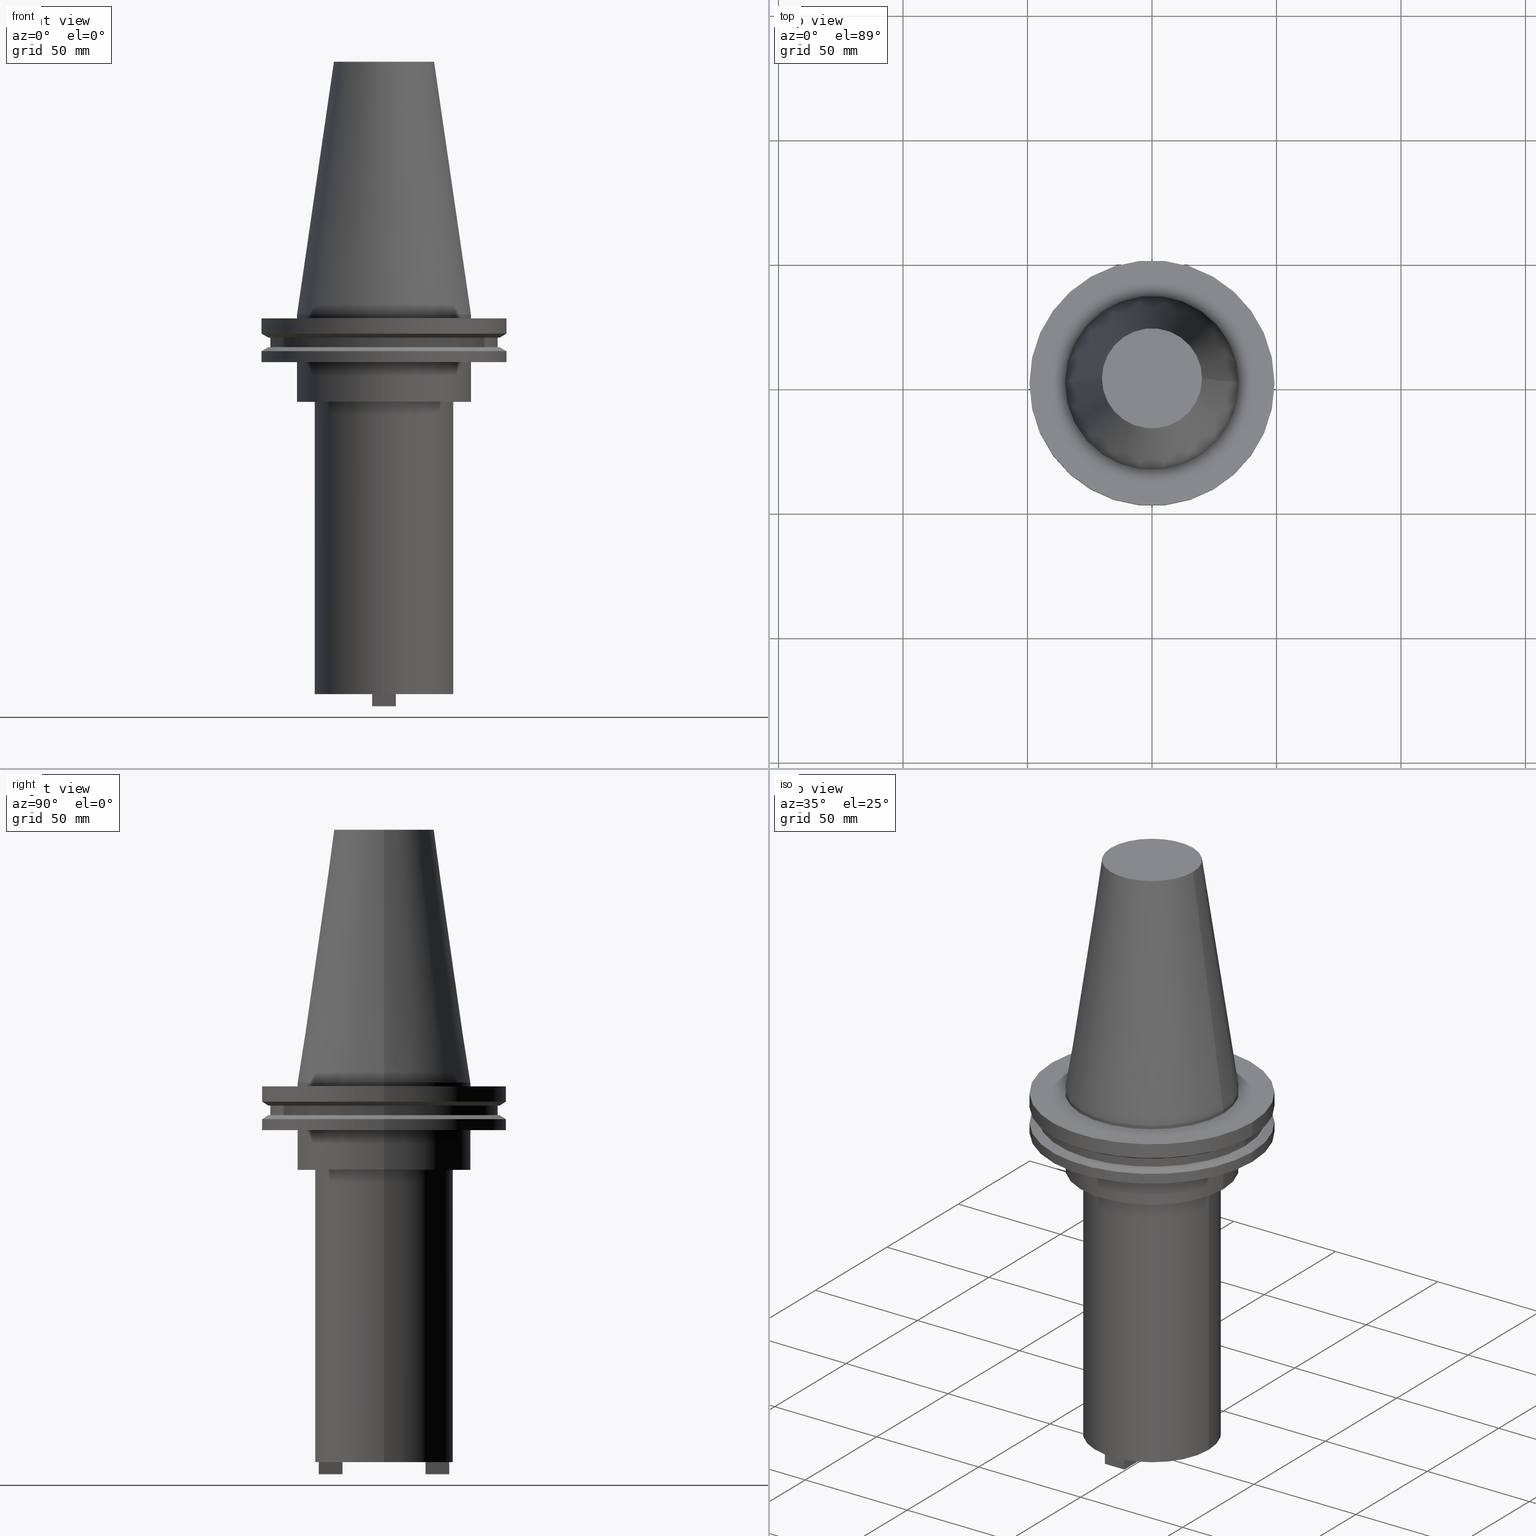
[diagram: canonical four-view strip — front | top / right | iso, engineering-drawing reading convention]
A machine part, canonical four-view strip (front | top / right | iso — engineering-drawing reading convention). The complete STEP part file that produces these views, byte-faithful:
ISO-10303-21;
HEADER;
FILE_DESCRIPTION (( 'STEP AP203' ),
    '1' );
FILE_NAME ('BCV50-SMC1_000-6.stp',
    '2022-03-03T19:54:23',
    ( '' ),
    ( '' ),
    'SwSTEP 2.0',
    'SolidWorks 2021',
    '' );
FILE_SCHEMA (( 'CONFIG_CONTROL_DESIGN' ));
ENDSEC;

DATA;
#1 = DIRECTION ( 'NONE',  ( -0.000000000000000000, -0.000000000000000000, 1.000000000000000000 ) ) ;
#2 = DIRECTION ( 'NONE',  ( 6.374311985216615162E-16, -1.000000000000000000, 0.000000000000000000 ) ) ;
#3 = EDGE_CURVE ( 'NONE', #386, #532, #207, .T. ) ;
#4 = ORIENTED_EDGE ( 'NONE', *, *, #655, .F. ) ;
#5 = CARTESIAN_POINT ( 'NONE',  ( -49.21499999999999631, 6.027099222003697826E-15, -1.499999999999987566 ) ) ;
#6 = VECTOR ( 'NONE', #91, 1000.000000000000114 ) ;
#7 = ORIENTED_EDGE ( 'NONE', *, *, #731, .T. ) ;
#8 = FACE_OUTER_BOUND ( 'NONE', #297, .T. ) ;
#9 = EDGE_CURVE ( 'NONE', #337, #527, #148, .T. ) ;
#10 = EDGE_LOOP ( 'NONE', ( #437, #776, #512, #904 ) ) ;
#11 = CARTESIAN_POINT ( 'NONE',  ( -27.80030000000000001, 3.404554841033616429E-15, -152.4000000000000057 ) ) ;
#12 = CARTESIAN_POINT ( 'NONE',  ( 46.43919780457007818, 5.857130358318725715E-15, -13.05499999999999794 ) ) ;
#13 = DIRECTION ( 'NONE',  ( -0.000000000000000000, -0.000000000000000000, 1.000000000000000000 ) ) ;
#14 = AXIS2_PLACEMENT_3D ( 'NONE', #205, #956, #1047 ) ;
#15 = FACE_OUTER_BOUND ( 'NONE', #744, .T. ) ;
#16 = ORIENTED_EDGE ( 'NONE', *, *, #501, .F. ) ;
#17 = DIRECTION ( 'NONE',  ( 1.000000000000000000, 0.000000000000000000, 0.000000000000000000 ) ) ;
#18 = DIRECTION ( 'NONE',  ( 0.000000000000000000, 0.000000000000000000, -1.000000000000000000 ) ) ;
#19 = ORIENTED_EDGE ( 'NONE', *, *, #501, .T. ) ;
#20 = DIRECTION ( 'NONE',  ( -0.000000000000000000, -0.000000000000000000, 1.000000000000000000 ) ) ;
#21 = CARTESIAN_POINT ( 'NONE',  ( 0.000000000000000000, 0.000000000000000000, 0.000000000000000000 ) ) ;
#22 = CARTESIAN_POINT ( 'NONE',  ( 4.762499999999986855, 16.68250000000001876, -152.4000000000000057 ) ) ;
#23 = CIRCLE ( 'NONE', #451, 34.92499999999999716 ) ;
#24 = ORIENTED_EDGE ( 'NONE', *, *, #28, .T. ) ;
#25 = DIRECTION ( 'NONE',  ( -0.000000000000000000, -0.000000000000000000, 1.000000000000000000 ) ) ;
#26 = VERTEX_POINT ( 'NONE', #225 ) ;
#27 = AXIS2_PLACEMENT_3D ( 'NONE', #823, #389, #540 ) ;
#28 = EDGE_CURVE ( 'NONE', #1056, #191, #216, .T. ) ;
#29 = DIRECTION ( 'NONE',  ( 1.000000000000000000, 0.000000000000000000, 0.000000000000000000 ) ) ;
#30 = CARTESIAN_POINT ( 'NONE',  ( 4.762499999999988631, -26.20750000000001023, -152.4000000000000057 ) ) ;
#31 = MANIFOLD_SOLID_BREP ( 'Boss-Extrude1', #888 ) ;
#32 = PRODUCT_RELATED_PRODUCT_CATEGORY ( 'detail', '', ( #167 ) ) ;
#33 = ORIENTED_EDGE ( 'NONE', *, *, #370, .F. ) ;
#34 = FACE_OUTER_BOUND ( 'NONE', #126, .T. ) ;
#35 = PLANE ( 'NONE',  #379 ) ;
#36 = AXIS2_PLACEMENT_3D ( 'NONE', #942, #157, #486 ) ;
#37 = EDGE_LOOP ( 'NONE', ( #391, #730, #1064, #43 ) ) ;
#38 = FACE_OUTER_BOUND ( 'NONE', #366, .T. ) ;
#39 = FACE_OUTER_BOUND ( 'NONE', #650, .T. ) ;
#40 = DIRECTION ( 'NONE',  ( -0.000000000000000000, -0.000000000000000000, 1.000000000000000000 ) ) ;
#41 = EDGE_CURVE ( 'NONE', #782, #340, #972, .T. ) ;
#42 = EDGE_CURVE ( 'NONE', #536, #571, #1085, .T. ) ;
#43 = ORIENTED_EDGE ( 'NONE', *, *, #852, .F. ) ;
#44 = ORIENTED_EDGE ( 'NONE', *, *, #312, .F. ) ;
#45 = DIRECTION ( 'NONE',  ( -0.000000000000000000, -0.000000000000000000, 1.000000000000000000 ) ) ;
#46 = CIRCLE ( 'NONE', #175, 20.10819343178871321 ) ;
#47 = DIRECTION ( 'NONE',  ( -0.000000000000000000, -0.000000000000000000, 1.000000000000000000 ) ) ;
#48 = AXIS2_PLACEMENT_3D ( 'NONE', #256, #517, #114 ) ;
#49 = ORIENTED_EDGE ( 'NONE', *, *, #974, .F. ) ;
#50 = AXIS2_PLACEMENT_3D ( 'NONE', #56, #368, #720 ) ;
#51 = FACE_BOUND ( 'NONE', #308, .T. ) ;
#52 = ORIENTED_EDGE ( 'NONE', *, *, #9, .T. ) ;
#53 = FACE_OUTER_BOUND ( 'NONE', #315, .T. ) ;
#54 = ORIENTED_EDGE ( 'NONE', *, *, #936, .F. ) ;
#55 = DIRECTION ( 'NONE',  ( -0.000000000000000000, -0.000000000000000000, 1.000000000000000000 ) ) ;
#56 = CARTESIAN_POINT ( 'NONE',  ( 0.000000000000000000, 27.80030000000000001, -152.4000000000000057 ) ) ;
#57 = VECTOR ( 'NONE', #935, 1000.000000000000000 ) ;
#58 = ADVANCED_FACE ( 'NONE', ( #728 ), #455, .F. ) ;
#59 = CALENDAR_DATE ( 2022, 3, 3 ) ;
#60 = ORIENTED_EDGE ( 'NONE', *, *, #971, .F. ) ;
#61 = FACE_OUTER_BOUND ( 'NONE', #578, .T. ) ;
#62 = ORIENTED_EDGE ( 'NONE', *, *, #749, .T. ) ;
#63 = AXIS2_PLACEMENT_3D ( 'NONE', #920, #387, #323 ) ;
#64 = ORIENTED_EDGE ( 'NONE', *, *, #42, .F. ) ;
#65 = AXIS2_PLACEMENT_3D ( 'NONE', #274, #622, #955 ) ;
#66 = VERTEX_POINT ( 'NONE', #1059 ) ;
#67 = LINE ( 'NONE', #826, #196 ) ;
#68 = AXIS2_PLACEMENT_3D ( 'NONE', #867, #441, #423 ) ;
#69 = ORIENTED_EDGE ( 'NONE', *, *, #831, .F. ) ;
#70 = VECTOR ( 'NONE', #472, 1000.000000000000000 ) ;
#71 = COORDINATED_UNIVERSAL_TIME_OFFSET ( 6, 0, .BEHIND. ) ;
#72 = VERTEX_POINT ( 'NONE', #800 ) ;
#73 = CARTESIAN_POINT ( 'NONE',  ( -4.762500000000017941, 26.20750000000002089, -157.2999999999999829 ) ) ;
#74 = ORIENTED_EDGE ( 'NONE', *, *, #609, .F. ) ;
#75 = DATE_TIME_ROLE ( 'creation_date' ) ;
#76 = DIRECTION ( 'NONE',  ( -1.000000000000000000, 3.642463991552348493E-16, 0.000000000000000000 ) ) ;
#77 = PRODUCT_DEFINITION_SHAPE ( 'NONE', 'NONE',  #596 ) ;
#78 = FACE_OUTER_BOUND ( 'NONE', #269, .T. ) ;
#79 = CIRCLE ( 'NONE', #372, 5.755000000000006111 ) ;
#80 = ADVANCED_FACE ( 'NONE', ( #51, #360, #1050, #550 ), #885, .F. ) ;
#81 = EDGE_CURVE ( 'NONE', #558, #425, #1080, .T. ) ;
#82 = CARTESIAN_POINT ( 'NONE',  ( 0.000000000000000000, 0.000000000000000000, -152.4000000000000057 ) ) ;
#83 = DIRECTION ( 'NONE',  ( 0.000000000000000000, 0.000000000000000000, 1.000000000000000000 ) ) ;
#84 = DIRECTION ( 'NONE',  ( 1.000000000000000000, 2.731847993664259767E-16, 0.000000000000000000 ) ) ;
#85 = EDGE_CURVE ( 'NONE', #892, #151, #303, .T. ) ;
#86 = CARTESIAN_POINT ( 'NONE',  ( 0.000000000000000000, 0.000000000000000000, -157.2999999999999829 ) ) ;
#87 = DIRECTION ( 'NONE',  ( 1.000000000000000000, 0.000000000000000000, 0.000000000000000000 ) ) ;
#88 = LINE ( 'NONE', #1025, #741 ) ;
#89 = FACE_OUTER_BOUND ( 'NONE', #865, .T. ) ;
#90 = ADVANCED_FACE ( 'NONE', ( #89 ), #1061, .T. ) ;
#91 = DIRECTION ( 'NONE',  ( -0.8660254037844169472, 0.000000000000000000, -0.5000000000000375255 ) ) ;
#92 = ADVANCED_FACE ( 'NONE', ( #164 ), #333, .F. ) ;
#93 = CARTESIAN_POINT ( 'NONE',  ( -34.92499999999999005, 0.000000000000000000, 0.000000000000000000 ) ) ;
#94 = VERTEX_POINT ( 'NONE', #1003 ) ;
#95 = DIRECTION ( 'NONE',  ( -0.000000000000000000, -0.000000000000000000, 1.000000000000000000 ) ) ;
#96 = EDGE_CURVE ( 'NONE', #177, #515, #603, .T. ) ;
#97 = EDGE_CURVE ( 'NONE', #425, #154, #407, .T. ) ;
#98 = CYLINDRICAL_SURFACE ( 'NONE', #554, 49.21499999999999631 ) ;
#99 = AXIS2_PLACEMENT_3D ( 'NONE', #736, #559, #483 ) ;
#100 = LINE ( 'NONE', #654, #691 ) ;
#101 = VECTOR ( 'NONE', #791, 1000.000000000000000 ) ;
#102 = CARTESIAN_POINT ( 'NONE',  ( 4.762499999999988631, -26.20750000000000668, -157.2999999999999829 ) ) ;
#103 = VERTEX_POINT ( 'NONE', #244 ) ;
#104 = CARTESIAN_POINT ( 'NONE',  ( 49.21499999999998920, 0.000000000000000000, -14.65761014474876944 ) ) ;
#105 = VECTOR ( 'NONE', #694, 1000.000000000000000 ) ;
#106 = ORIENTED_EDGE ( 'NONE', *, *, #936, .T. ) ;
#107 = FACE_OUTER_BOUND ( 'NONE', #273, .T. ) ;
#108 = CARTESIAN_POINT ( 'NONE',  ( -20.10819343178871321, 0.000000000000000000, 101.5999999999999801 ) ) ;
#109 = DIRECTION ( 'NONE',  ( 1.000000000000000000, 0.000000000000000000, 0.000000000000000000 ) ) ;
#110 = AXIS2_PLACEMENT_3D ( 'NONE', #528, #783, #712 ) ;
#111 = DIRECTION ( 'NONE',  ( -0.000000000000000000, -0.000000000000000000, 1.000000000000000000 ) ) ;
#112 = ORIENTED_EDGE ( 'NONE', *, *, #85, .T. ) ;
#113 = CARTESIAN_POINT ( 'NONE',  ( 0.000000000000000000, 0.000000000000000000, -35.04999999999999716 ) ) ;
#114 = DIRECTION ( 'NONE',  ( 1.000000000000000000, 0.000000000000000000, 0.000000000000000000 ) ) ;
#115 = LOCAL_TIME ( 13, 54, 23.00000000000000000, #1084 ) ;
#116 = LINE ( 'NONE', #209, #816 ) ;
#117 = VECTOR ( 'NONE', #863, 1000.000000000000000 ) ;
#118 = PLANE ( 'NONE',  #588 ) ;
#119 = FACE_OUTER_BOUND ( 'NONE', #871, .T. ) ;
#120 = ORIENTED_EDGE ( 'NONE', *, *, #575, .T. ) ;
#121 = LINE ( 'NONE', #883, #669 ) ;
#122 = CYLINDRICAL_SURFACE ( 'NONE', #1049, 45.64500000000000313 ) ;
#123 = DIRECTION ( 'NONE',  ( -1.000000000000000000, 0.000000000000000000, -0.000000000000000000 ) ) ;
#124 = EDGE_CURVE ( 'NONE', #773, #1072, #734, .T. ) ;
#125 = AXIS2_PLACEMENT_3D ( 'NONE', #179, #508, #684 ) ;
#126 = EDGE_LOOP ( 'NONE', ( #906, #626, #688, #380 ) ) ;
#127 = CARTESIAN_POINT ( 'NONE',  ( 0.000000000000000000, 0.000000000000000000, 101.5999999999999943 ) ) ;
#128 = DIRECTION ( 'NONE',  ( -1.000000000000000000, 3.642463991552348493E-16, 0.000000000000000000 ) ) ;
#129 = FACE_OUTER_BOUND ( 'NONE', #979, .T. ) ;
#130 = CARTESIAN_POINT ( 'NONE',  ( -49.21499999999998920, 6.027099222003697037E-15, 101.5999999999999943 ) ) ;
#131 = ORIENTED_EDGE ( 'NONE', *, *, #655, .T. ) ;
#132 = DIRECTION ( 'NONE',  ( -0.1443082272672999988, 0.000000000000000000, -0.9895327864921755756 ) ) ;
#133 = EDGE_LOOP ( 'NONE', ( #1035, #919, #988, #987 ) ) ;
#134 = CARTESIAN_POINT ( 'NONE',  ( 0.000000000000000000, 0.000000000000000000, 101.5999999999999943 ) ) ;
#135 = AXIS2_PLACEMENT_3D ( 'NONE', #962, #357, #706 ) ;
#136 = CONICAL_SURFACE ( 'NONE', #525, 46.43919780457007818, 1.047197551196575205 ) ;
#137 = ORIENTED_EDGE ( 'NONE', *, *, #749, .F. ) ;
#138 = VERTEX_POINT ( 'NONE', #572 ) ;
#139 = COORDINATED_UNIVERSAL_TIME_OFFSET ( 6, 0, .BEHIND. ) ;
#140 = VERTEX_POINT ( 'NONE', #750 ) ;
#141 = DIRECTION ( 'NONE',  ( -0.8660254037844273833, 1.060575238724893110E-16, 0.5000000000000195399 ) ) ;
#142 = ORIENTED_EDGE ( 'NONE', *, *, #733, .F. ) ;
#143 = EDGE_CURVE ( 'NONE', #860, #103, #252, .T. ) ;
#144 = AXIS2_PLACEMENT_3D ( 'NONE', #210, #891, #530 ) ;
#145 = APPLICATION_PROTOCOL_DEFINITION ( 'international standard', 'config_control_design', 1994, #949 ) ;
#146 = EDGE_LOOP ( 'NONE', ( #228, #1075 ) ) ;
#147 = DIRECTION ( 'NONE',  ( -0.000000000000000000, -0.000000000000000000, 1.000000000000000000 ) ) ;
#148 = LINE ( 'NONE', #463, #178 ) ;
#149 = ORIENTED_EDGE ( 'NONE', *, *, #97, .T. ) ;
#150 = DIRECTION ( 'NONE',  ( 0.000000000000000000, 0.000000000000000000, -1.000000000000000000 ) ) ;
#151 = VERTEX_POINT ( 'NONE', #5 ) ;
#152 = VERTEX_POINT ( 'NONE', #760 ) ;
#153 = APPROVAL_ROLE ( '' ) ;
#154 = VERTEX_POINT ( 'NONE', #488 ) ;
#155 = CARTESIAN_POINT ( 'NONE',  ( 0.000000000000000000, 0.000000000000000000, -157.2999999999999829 ) ) ;
#156 = DIRECTION ( 'NONE',  ( 0.000000000000000000, 0.000000000000000000, -1.000000000000000000 ) ) ;
#157 = DIRECTION ( 'NONE',  ( -0.000000000000000000, -0.000000000000000000, 1.000000000000000000 ) ) ;
#158 = PERSON_AND_ORGANIZATION ( #586, #417 ) ;
#159 = DIRECTION ( 'NONE',  ( -0.000000000000000000, -0.000000000000000000, 1.000000000000000000 ) ) ;
#160 = DIRECTION ( 'NONE',  ( 1.000000000000000000, 0.000000000000000000, 0.000000000000000000 ) ) ;
#161 = FACE_OUTER_BOUND ( 'NONE', #1006, .T. ) ;
#162 = ORIENTED_EDGE ( 'NONE', *, *, #934, .T. ) ;
#163 = CARTESIAN_POINT ( 'NONE',  ( -34.92499999999999716, 4.277078946022130887E-15, -19.04999999999999716 ) ) ;
#164 = FACE_OUTER_BOUND ( 'NONE', #212, .T. ) ;
#165 = ADVANCED_FACE ( 'NONE', ( #566 ), #136, .T. ) ;
#166 = DIRECTION ( 'NONE',  ( -0.000000000000000000, -0.000000000000000000, 1.000000000000000000 ) ) ;
#167 = PRODUCT ( 'BCV50-SMC1_000-6', 'BCV50-SMC1_000-6', '', ( #732 ) ) ;
#168 = CARTESIAN_POINT ( 'NONE',  ( 0.000000000000000000, 0.000000000000000000, 101.5999999999999943 ) ) ;
#169 = ORIENTED_EDGE ( 'NONE', *, *, #481, .F. ) ;
#170 = DIRECTION ( 'NONE',  ( 1.000000000000000000, 0.000000000000000000, 0.000000000000000000 ) ) ;
#171 = CARTESIAN_POINT ( 'NONE',  ( -49.21499999999999631, 6.027099222003697826E-15, 101.5999999999999943 ) ) ;
#172 = DIRECTION ( 'NONE',  ( -0.000000000000000000, -0.000000000000000000, 1.000000000000000000 ) ) ;
#173 = LINE ( 'NONE', #102, #590 ) ;
#174 = LINE ( 'NONE', #22, #583 ) ;
#175 = AXIS2_PLACEMENT_3D ( 'NONE', #450, #45, #520 ) ;
#176 = AXIS2_PLACEMENT_3D ( 'NONE', #281, #625, #957 ) ;
#177 = VERTEX_POINT ( 'NONE', #11 ) ;
#178 = VECTOR ( 'NONE', #304, 1000.000000000000000 ) ;
#179 = CARTESIAN_POINT ( 'NONE',  ( 4.762499999999988631, -26.20750000000000668, -157.2999999999999829 ) ) ;
#180 = ORIENTED_EDGE ( 'NONE', *, *, #81, .T. ) ;
#181 = LINE ( 'NONE', #778, #1083 ) ;
#182 = CARTESIAN_POINT ( 'NONE',  ( 0.000000000000000000, 0.000000000000000000, -35.04999999999999716 ) ) ;
#183 = EDGE_LOOP ( 'NONE', ( #371, #378 ) ) ;
#184 = ADVANCED_FACE ( 'NONE', ( #495 ), #847, .T. ) ;
#185 = EDGE_LOOP ( 'NONE', ( #992, #223, #973, #634 ) ) ;
#186 =( NAMED_UNIT ( * ) PLANE_ANGLE_UNIT ( ) SI_UNIT ( $, .RADIAN. ) );
#187 = APPROVAL ( #745, 'UNSPECIFIED' ) ;
#188 = CARTESIAN_POINT ( 'NONE',  ( 0.000000000000000000, 0.000000000000000000, -13.05499999999999794 ) ) ;
#189 = DIRECTION ( 'NONE',  ( 0.000000000000000000, 0.000000000000000000, -1.000000000000000000 ) ) ;
#190 = AXIS2_PLACEMENT_3D ( 'NONE', #535, #354, #445 ) ;
#191 = VERTEX_POINT ( 'NONE', #401 ) ;
#192 = DIRECTION ( 'NONE',  ( 1.000000000000000000, 0.000000000000000000, 0.000000000000000000 ) ) ;
#193 = DIRECTION ( 'NONE',  ( 1.000000000000000000, 0.000000000000000000, 0.000000000000000000 ) ) ;
#194 = DIRECTION ( 'NONE',  ( 1.000000000000000000, 0.000000000000000000, 0.000000000000000000 ) ) ;
#195 = EDGE_CURVE ( 'NONE', #386, #782, #997, .T. ) ;
#196 = VECTOR ( 'NONE', #159, 1000.000000000000000 ) ;
#197 = EDGE_CURVE ( 'NONE', #773, #26, #589, .T. ) ;
#198 = ORIENTED_EDGE ( 'NONE', *, *, #42, .T. ) ;
#199 = EDGE_CURVE ( 'NONE', #1072, #910, #994, .T. ) ;
#200 = CARTESIAN_POINT ( 'NONE',  ( 4.762499999999986855, 16.68250000000001876, -157.2999999999999829 ) ) ;
#201 = FACE_BOUND ( 'NONE', #442, .T. ) ;
#202 = EDGE_LOOP ( 'NONE', ( #545, #805, #889, #876 ) ) ;
#203 = CARTESIAN_POINT ( 'NONE',  ( -4.762500000000017941, 26.20750000000002444, -152.4000000000000057 ) ) ;
#204 = EDGE_LOOP ( 'NONE', ( #945, #541 ) ) ;
#205 = CARTESIAN_POINT ( 'NONE',  ( 0.000000000000000000, 0.000000000000000000, -9.204999999999991189 ) ) ;
#206 = CYLINDRICAL_SURFACE ( 'NONE', #135, 45.64500000000000313 ) ;
#207 = LINE ( 'NONE', #130, #402 ) ;
#208 = CC_DESIGN_DATE_AND_TIME_ASSIGNMENT ( #990, #562, ( #770 ) ) ;
#209 = CARTESIAN_POINT ( 'NONE',  ( -34.92499999999999005, 4.277078946022130098E-15, 101.5999999999999943 ) ) ;
#210 = CARTESIAN_POINT ( 'NONE',  ( 0.000000000000000000, 0.000000000000000000, -13.05499999999999794 ) ) ;
#211 = AXIS2_PLACEMENT_3D ( 'NONE', #155, #1058, #901 ) ;
#212 = EDGE_LOOP ( 'NONE', ( #220, #198 ) ) ;
#213 = EDGE_CURVE ( 'NONE', #317, #353, #100, .T. ) ;
#214 = ORIENTED_EDGE ( 'NONE', *, *, #419, .T. ) ;
#215 = LINE ( 'NONE', #549, #570 ) ;
#216 = LINE ( 'NONE', #807, #70 ) ;
#217 = PERSON_AND_ORGANIZATION ( #586, #417 ) ;
#218 = ORIENTED_EDGE ( 'NONE', *, *, #924, .T. ) ;
#219 = FACE_OUTER_BOUND ( 'NONE', #10, .T. ) ;
#220 = ORIENTED_EDGE ( 'NONE', *, *, #1032, .T. ) ;
#221 = AXIS2_PLACEMENT_3D ( 'NONE', #608, #946, #87 ) ;
#222 = APPROVAL_ROLE ( '' ) ;
#223 = ORIENTED_EDGE ( 'NONE', *, *, #897, .F. ) ;
#224 = CYLINDRICAL_SURFACE ( 'NONE', #454, 5.754999999999994564 ) ;
#225 = CARTESIAN_POINT ( 'NONE',  ( 34.92499999999999716, 0.000000000000000000, -19.04999999999999716 ) ) ;
#226 = PERSON_AND_ORGANIZATION_ROLE ( 'design_supplier' ) ;
#227 = EDGE_CURVE ( 'NONE', #998, #1062, #908, .T. ) ;
#228 = ORIENTED_EDGE ( 'NONE', *, *, #687, .F. ) ;
#229 = DIRECTION ( 'NONE',  ( -0.000000000000000000, -0.000000000000000000, 1.000000000000000000 ) ) ;
#230 = VECTOR ( 'NONE', #543, 1000.000000000000000 ) ;
#231 = AXIS2_PLACEMENT_3D ( 'NONE', #1033, #189, #123 ) ;
#232 = DIRECTION ( 'NONE',  ( -1.821231995776175725E-16, -1.000000000000000000, -0.000000000000000000 ) ) ;
#233 = DIRECTION ( 'NONE',  ( -0.000000000000000000, -0.000000000000000000, 1.000000000000000000 ) ) ;
#234 = ORIENTED_EDGE ( 'NONE', *, *, #96, .F. ) ;
#235 = VERTEX_POINT ( 'NONE', #1007 ) ;
#236 = FACE_OUTER_BOUND ( 'NONE', #1052, .T. ) ;
#237 = ORIENTED_EDGE ( 'NONE', *, *, #385, .F. ) ;
#238 = DIRECTION ( 'NONE',  ( -1.821231995776175725E-16, -1.000000000000000000, -0.000000000000000000 ) ) ;
#239 = CARTESIAN_POINT ( 'NONE',  ( 5.754999999999994564, 0.000000000000000000, -35.04999999999999716 ) ) ;
#240 = ADVANCED_FACE ( 'NONE', ( #78 ), #834, .T. ) ;
#241 = CIRCLE ( 'NONE', #513, 49.21500000000000341 ) ;
#242 = LINE ( 'NONE', #73, #882 ) ;
#243 = VERTEX_POINT ( 'NONE', #335 ) ;
#244 = CARTESIAN_POINT ( 'NONE',  ( 34.92499999999999005, 0.000000000000000000, -1.499999999999987566 ) ) ;
#245 = VECTOR ( 'NONE', #665, 1000.000000000000000 ) ;
#246 = CYLINDRICAL_SURFACE ( 'NONE', #969, 49.21499999999999631 ) ;
#247 = ADVANCED_FACE ( 'NONE', ( #851, #119 ), #601, .F. ) ;
#248 = DIRECTION ( 'NONE',  ( -0.000000000000000000, -0.000000000000000000, 1.000000000000000000 ) ) ;
#249 = CIRCLE ( 'NONE', #65, 49.21499999999998920 ) ;
#250 = ORIENTED_EDGE ( 'NONE', *, *, #227, .T. ) ;
#251 = DIRECTION ( 'NONE',  ( -1.000000000000000000, 0.000000000000000000, -0.000000000000000000 ) ) ;
#252 = CIRCLE ( 'NONE', #869, 34.92499999999999005 ) ;
#253 = PLANE ( 'NONE',  #932 ) ;
#254 = DIRECTION ( 'NONE',  ( -1.000000000000000000, 0.000000000000000000, 0.000000000000000000 ) ) ;
#255 = CARTESIAN_POINT ( 'NONE',  ( -4.762500000000017941, 26.20750000000002089, -157.2999999999999829 ) ) ;
#256 = CARTESIAN_POINT ( 'NONE',  ( 0.000000000000000000, 0.000000000000000000, -152.4000000000000057 ) ) ;
#257 = AXIS2_PLACEMENT_3D ( 'NONE', #489, #923, #1027 ) ;
#258 = CIRCLE ( 'NONE', #560, 34.92499999999999005 ) ;
#259 = DIRECTION ( 'NONE',  ( 1.000000000000000000, 0.000000000000000000, 0.000000000000000000 ) ) ;
#260 = ORIENTED_EDGE ( 'NONE', *, *, #313, .F. ) ;
#261 = CARTESIAN_POINT ( 'NONE',  ( -49.21499999999998920, 6.027099222003697037E-15, -14.65761014474876944 ) ) ;
#262 = FACE_OUTER_BOUND ( 'NONE', #977, .T. ) ;
#263 = ADVANCED_FACE ( 'NONE', ( #620 ), #786, .T. ) ;
#264 = AXIS2_PLACEMENT_3D ( 'NONE', #113, #318, #17 ) ;
#265 = ORIENTED_EDGE ( 'NONE', *, *, #611, .T. ) ;
#266 = DIRECTION ( 'NONE',  ( -0.000000000000000000, -0.000000000000000000, 1.000000000000000000 ) ) ;
#267 = APPROVAL_PERSON_ORGANIZATION ( #635, #187, #153 ) ;
#268 = ORIENTED_EDGE ( 'NONE', *, *, #724, .T. ) ;
#269 = EDGE_LOOP ( 'NONE', ( #349, #637, #710, #878 ) ) ;
#270 = CYLINDRICAL_SURFACE ( 'NONE', #221, 49.21499999999998920 ) ;
#271 = DIRECTION ( 'NONE',  ( -0.000000000000000000, -0.000000000000000000, 1.000000000000000000 ) ) ;
#272 = ADVANCED_FACE ( 'NONE', ( #943 ), #35, .F. ) ;
#273 = EDGE_LOOP ( 'NONE', ( #54, #954, #289, #607 ) ) ;
#274 = CARTESIAN_POINT ( 'NONE',  ( 0.000000000000000000, 0.000000000000000000, -14.65761014474876944 ) ) ;
#275 = VECTOR ( 'NONE', #1013, 1000.000000000000000 ) ;
#276 = CARTESIAN_POINT ( 'NONE',  ( -4.762500000000019718, -16.68249999999999389, -157.2999999999999829 ) ) ;
#277 = DIRECTION ( 'NONE',  ( -0.000000000000000000, -0.000000000000000000, 1.000000000000000000 ) ) ;
#278 = VERTEX_POINT ( 'NONE', #595 ) ;
#279 = ORIENTED_EDGE ( 'NONE', *, *, #503, .T. ) ;
#280 = CARTESIAN_POINT ( 'NONE',  ( 4.762499999999988631, -26.20750000000000668, -157.2999999999999829 ) ) ;
#281 = CARTESIAN_POINT ( 'NONE',  ( 0.000000000000000000, 0.000000000000000000, -9.204999999999991189 ) ) ;
#282 = ORIENTED_EDGE ( 'NONE', *, *, #539, .F. ) ;
#283 = VECTOR ( 'NONE', #416, 1000.000000000000000 ) ;
#284 = DIRECTION ( 'NONE',  ( 6.374311985216615162E-16, -1.000000000000000000, 0.000000000000000000 ) ) ;
#285 = DIRECTION ( 'NONE',  ( -0.000000000000000000, -0.000000000000000000, 1.000000000000000000 ) ) ;
#286 = CARTESIAN_POINT ( 'NONE',  ( 0.000000000000000000, 49.21499999999998920, -19.04999999999999716 ) ) ;
#287 = CC_DESIGN_DATE_AND_TIME_ASSIGNMENT ( #641, #75, ( #596 ) ) ;
#288 = ORIENTED_EDGE ( 'NONE', *, *, #1036, .T. ) ;
#289 = ORIENTED_EDGE ( 'NONE', *, *, #413, .T. ) ;
#290 = LINE ( 'NONE', #438, #230 ) ;
#291 = CIRCLE ( 'NONE', #424, 27.80030000000000001 ) ;
#292 = FACE_OUTER_BOUND ( 'NONE', #1069, .T. ) ;
#293 = ORIENTED_EDGE ( 'NONE', *, *, #687, .T. ) ;
#294 = AXIS2_PLACEMENT_3D ( 'NONE', #188, #404, #522 ) ;
#295 = EDGE_LOOP ( 'NONE', ( #7, #1055, #69, #268 ) ) ;
#296 = ORIENTED_EDGE ( 'NONE', *, *, #841, .T. ) ;
#297 = EDGE_LOOP ( 'NONE', ( #293, #439, #169, #893 ) ) ;
#298 = LINE ( 'NONE', #638, #912 ) ;
#299 = ORIENTED_EDGE ( 'NONE', *, *, #974, .T. ) ;
#300 = ORIENTED_EDGE ( 'NONE', *, *, #924, .F. ) ;
#301 = DIRECTION ( 'NONE',  ( -0.000000000000000000, -0.000000000000000000, 1.000000000000000000 ) ) ;
#302 = AXIS2_PLACEMENT_3D ( 'NONE', #343, #937, #695 ) ;
#303 = CIRCLE ( 'NONE', #460, 49.21499999999999631 ) ;
#304 = DIRECTION ( 'NONE',  ( 0.8660254037844273833, 0.000000000000000000, 0.5000000000000195399 ) ) ;
#305 = ORIENTED_EDGE ( 'NONE', *, *, #490, .F. ) ;
#306 = EDGE_CURVE ( 'NONE', #151, #892, #1060, .T. ) ;
#307 = APPROVAL_STATUS ( 'not_yet_approved' ) ;
#308 = EDGE_LOOP ( 'NONE', ( #514, #1078, #282, #692 ) ) ;
#309 = CARTESIAN_POINT ( 'NONE',  ( -4.762500000000017053, -26.20750000000000668, -157.2999999999999829 ) ) ;
#310 = CARTESIAN_POINT ( 'NONE',  ( 49.21499999999998920, 0.000000000000000000, 101.5999999999999943 ) ) ;
#311 = VECTOR ( 'NONE', #421, 1000.000000000000000 ) ;
#312 = EDGE_CURVE ( 'NONE', #278, #771, #700, .T. ) ;
#313 = EDGE_CURVE ( 'NONE', #836, #652, #849, .T. ) ;
#314 = PERSON_AND_ORGANIZATION ( #586, #417 ) ;
#315 = EDGE_LOOP ( 'NONE', ( #615, #137, #60, #218 ) ) ;
#316 = CARTESIAN_POINT ( 'NONE',  ( 0.000000000000000000, 0.000000000000000000, 0.000000000000000000 ) ) ;
#317 = VERTEX_POINT ( 'NONE', #434 ) ;
#318 = DIRECTION ( 'NONE',  ( 0.000000000000000000, 0.000000000000000000, -1.000000000000000000 ) ) ;
#319 = VERTEX_POINT ( 'NONE', #683 ) ;
#320 = CARTESIAN_POINT ( 'NONE',  ( 4.762499999999986855, 16.68250000000001876, -157.2999999999999829 ) ) ;
#321 = DIRECTION ( 'NONE',  ( 1.000000000000000000, 0.000000000000000000, 0.000000000000000000 ) ) ;
#322 = CARTESIAN_POINT ( 'NONE',  ( -49.21499999999998920, 0.000000000000000000, -14.65761014474876944 ) ) ;
#323 = DIRECTION ( 'NONE',  ( 1.000000000000000000, 0.000000000000000000, 0.000000000000000000 ) ) ;
#324 = EDGE_CURVE ( 'NONE', #140, #850, #174, .T. ) ;
#325 = DIRECTION ( 'NONE',  ( 1.000000000000000000, -3.642463991552351451E-16, -0.000000000000000000 ) ) ;
#326 = AXIS2_PLACEMENT_3D ( 'NONE', #569, #381, #76 ) ;
#327 = DIRECTION ( 'NONE',  ( -0.000000000000000000, -0.000000000000000000, 1.000000000000000000 ) ) ;
#328 = LINE ( 'NONE', #358, #966 ) ;
#329 = ORIENTED_EDGE ( 'NONE', *, *, #213, .T. ) ;
#330 = DIRECTION ( 'NONE',  ( 1.000000000000000000, 0.000000000000000000, 0.000000000000000000 ) ) ;
#331 = CC_DESIGN_PERSON_AND_ORGANIZATION_ASSIGNMENT ( #314, #651, ( #770 ) ) ;
#332 = CARTESIAN_POINT ( 'NONE',  ( 4.762499999999988631, -26.20750000000000668, -152.4000000000000057 ) ) ;
#333 = PLANE ( 'NONE',  #926 ) ;
#334 = CARTESIAN_POINT ( 'NONE',  ( 0.000000000000000000, 0.000000000000000000, -7.602389855251287187 ) ) ;
#335 = CARTESIAN_POINT ( 'NONE',  ( -45.64500000000000313, 5.589900314708094957E-15, -13.05499999999999794 ) ) ;
#336 = CARTESIAN_POINT ( 'NONE',  ( 49.21499999999999631, 0.000000000000000000, -1.499999999999987566 ) ) ;
#337 = VERTEX_POINT ( 'NONE', #348 ) ;
#338 = CARTESIAN_POINT ( 'NONE',  ( 49.21499999999998920, 6.027099222003697037E-15, -14.65761014474876944 ) ) ;
#339 = LINE ( 'NONE', #1024, #101 ) ;
#340 = VERTEX_POINT ( 'NONE', #104 ) ;
#341 = DIRECTION ( 'NONE',  ( 0.000000000000000000, -0.000000000000000000, 1.000000000000000000 ) ) ;
#342 = LINE ( 'NONE', #909, #621 ) ;
#343 = CARTESIAN_POINT ( 'NONE',  ( 0.000000000000000000, 0.000000000000000000, -9.204999999999991189 ) ) ;
#344 = EDGE_CURVE ( 'NONE', #652, #66, #505, .T. ) ;
#345 = ORIENTED_EDGE ( 'NONE', *, *, #796, .F. ) ;
#346 = CARTESIAN_POINT ( 'NONE',  ( -34.92499999999999005, 0.000000000000000000, 0.000000000000000000 ) ) ;
#347 = CARTESIAN_POINT ( 'NONE',  ( -4.762500000000017941, 26.20750000000002089, -152.4000000000000057 ) ) ;
#348 = CARTESIAN_POINT ( 'NONE',  ( 46.43919780457007818, 0.000000000000000000, -9.204999999999991189 ) ) ;
#349 = ORIENTED_EDGE ( 'NONE', *, *, #831, .T. ) ;
#350 =( NAMED_UNIT ( * ) SI_UNIT ( $, .STERADIAN. ) SOLID_ANGLE_UNIT ( ) );
#351 = DIRECTION ( 'NONE',  ( 1.000000000000000000, 0.000000000000000000, 0.000000000000000000 ) ) ;
#352 = CARTESIAN_POINT ( 'NONE',  ( -49.21499999999998920, 6.027099222003697037E-15, -19.04999999999999716 ) ) ;
#353 = VERTEX_POINT ( 'NONE', #30 ) ;
#354 = DIRECTION ( 'NONE',  ( 0.000000000000000000, 0.000000000000000000, -1.000000000000000000 ) ) ;
#355 = CC_DESIGN_PERSON_AND_ORGANIZATION_ASSIGNMENT ( #464, #568, ( #729 ) ) ;
#356 = CARTESIAN_POINT ( 'NONE',  ( -4.762500000000017053, -26.20750000000000668, -157.2999999999999829 ) ) ;
#357 = DIRECTION ( 'NONE',  ( -0.000000000000000000, -0.000000000000000000, 1.000000000000000000 ) ) ;
#358 = CARTESIAN_POINT ( 'NONE',  ( 45.64500000000000313, 0.000000000000000000, 101.5999999999999943 ) ) ;
#359 = DIRECTION ( 'NONE',  ( -0.000000000000000000, -0.000000000000000000, 1.000000000000000000 ) ) ;
#360 = FACE_OUTER_BOUND ( 'NONE', #811, .T. ) ;
#361 = VERTEX_POINT ( 'NONE', #531 ) ;
#362 = ORIENTED_EDGE ( 'NONE', *, *, #97, .F. ) ;
#363 = CARTESIAN_POINT ( 'NONE',  ( 0.000000000000000000, 0.000000000000000000, -35.04999999999999716 ) ) ;
#364 = EDGE_CURVE ( 'NONE', #698, #1056, #523, .T. ) ;
#365 = VECTOR ( 'NONE', #466, 1000.000000000000000 ) ;
#366 = EDGE_LOOP ( 'NONE', ( #64, #19, #737, #662 ) ) ;
#367 = DIRECTION ( 'NONE',  ( 1.000000000000000000, 0.000000000000000000, 0.000000000000000000 ) ) ;
#368 = DIRECTION ( 'NONE',  ( 0.000000000000000000, -0.000000000000000000, 1.000000000000000000 ) ) ;
#369 = CONICAL_SURFACE ( 'NONE', #190, 34.92499999999999005, 0.1448138465474119452 ) ;
#370 = EDGE_CURVE ( 'NONE', #361, #152, #582, .T. ) ;
#371 = ORIENTED_EDGE ( 'NONE', *, *, #124, .F. ) ;
#372 = AXIS2_PLACEMENT_3D ( 'NONE', #82, #1, #510 ) ;
#373 = CALENDAR_DATE ( 2022, 3, 3 ) ;
#374 = AXIS2_PLACEMENT_3D ( 'NONE', #995, #396, #516 ) ;
#375 = ORIENTED_EDGE ( 'NONE', *, *, #85, .F. ) ;
#376 = CARTESIAN_POINT ( 'NONE',  ( -4.762500000000018829, 16.68250000000002231, -152.4000000000000057 ) ) ;
#377 = DIRECTION ( 'NONE',  ( -0.000000000000000000, -0.000000000000000000, 1.000000000000000000 ) ) ;
#378 = ORIENTED_EDGE ( 'NONE', *, *, #1086, .F. ) ;
#379 = AXIS2_PLACEMENT_3D ( 'NONE', #772, #795, #1028 ) ;
#380 = ORIENTED_EDGE ( 'NONE', *, *, #944, .T. ) ;
#381 = DIRECTION ( 'NONE',  ( 3.642463991552348493E-16, 1.000000000000000000, 0.000000000000000000 ) ) ;
#382 = VERTEX_POINT ( 'NONE', #1019 ) ;
#383 = ADVANCED_FACE ( 'NONE', ( #953 ), #659, .T. ) ;
#384 = CALENDAR_DATE ( 2022, 3, 3 ) ;
#385 = EDGE_CURVE ( 'NONE', #243, #715, #339, .T. ) ;
#386 = VERTEX_POINT ( 'NONE', #352 ) ;
#387 = DIRECTION ( 'NONE',  ( -0.000000000000000000, -0.000000000000000000, 1.000000000000000000 ) ) ;
#388 = VECTOR ( 'NONE', #128, 1000.000000000000000 ) ;
#389 = DIRECTION ( 'NONE',  ( 1.000000000000000000, -9.106159978880878627E-17, 0.000000000000000000 ) ) ;
#390 = COORDINATED_UNIVERSAL_TIME_OFFSET ( 6, 0, .BEHIND. ) ;
#391 = ORIENTED_EDGE ( 'NONE', *, *, #199, .F. ) ;
#392 = CARTESIAN_POINT ( 'NONE',  ( 4.762499999999981526, 26.20750000000001734, -157.2999999999999829 ) ) ;
#393 = EDGE_CURVE ( 'NONE', #715, #1000, #868, .T. ) ;
#394 = ADVANCED_FACE ( 'NONE', ( #262, #201 ), #874, .F. ) ;
#395 = DIRECTION ( 'NONE',  ( 1.000000000000000000, 0.000000000000000000, 0.000000000000000000 ) ) ;
#396 = DIRECTION ( 'NONE',  ( -0.000000000000000000, -0.000000000000000000, 1.000000000000000000 ) ) ;
#397 = DATE_AND_TIME ( #373, #115 ) ;
#398 = ADVANCED_FACE ( 'NONE', ( #129 ), #206, .T. ) ;
#399 = CARTESIAN_POINT ( 'NONE',  ( 5.755000000000006111, 0.000000000000000000, -152.4000000000000057 ) ) ;
#400 = CIRCLE ( 'NONE', #257, 45.64500000000000313 ) ;
#401 = CARTESIAN_POINT ( 'NONE',  ( -4.762500000000019718, -16.68249999999999034, -152.4000000000000057 ) ) ;
#402 = VECTOR ( 'NONE', #981, 1000.000000000000000 ) ;
#403 = EDGE_CURVE ( 'NONE', #177, #361, #453, .T. ) ;
#404 = DIRECTION ( 'NONE',  ( -0.000000000000000000, -0.000000000000000000, 1.000000000000000000 ) ) ;
#405 = ADVANCED_FACE ( 'NONE', ( #1042, #538 ), #880, .F. ) ;
#406 = CARTESIAN_POINT ( 'NONE',  ( 0.000000000000000000, 0.000000000000000000, 0.000000000000000000 ) ) ;
#407 = LINE ( 'NONE', #499, #661 ) ;
#408 = LINE ( 'NONE', #338, #721 ) ;
#409 = APPLICATION_CONTEXT ( 'configuration controlled 3d designs of mechanical parts and assemblies' ) ;
#410 = LINE ( 'NONE', #255, #57 ) ;
#411 = EDGE_CURVE ( 'NONE', #152, #361, #457, .T. ) ;
#412 = CARTESIAN_POINT ( 'NONE',  ( 4.762499999999990408, -16.68250000000000810, -157.2999999999999829 ) ) ;
#413 = EDGE_CURVE ( 'NONE', #527, #892, #181, .T. ) ;
#414 = AXIS2_PLACEMENT_3D ( 'NONE', #309, #84, #648 ) ;
#415 = CARTESIAN_POINT ( 'NONE',  ( 0.000000000000000000, 0.000000000000000000, 101.5999999999999943 ) ) ;
#416 = DIRECTION ( 'NONE',  ( -0.000000000000000000, -0.000000000000000000, 1.000000000000000000 ) ) ;
#417 = ORGANIZATION ( 'UNSPECIFIED', 'UNSPECIFIED', '' ) ;
#418 = VECTOR ( 'NONE', #679, 1000.000000000000000 ) ;
#419 = EDGE_CURVE ( 'NONE', #470, #66, #602, .T. ) ;
#420 = AXIS2_PLACEMENT_3D ( 'NONE', #767, #579, #254 ) ;
#421 = DIRECTION ( 'NONE',  ( -1.000000000000000000, 0.000000000000000000, 0.000000000000000000 ) ) ;
#422 = EDGE_LOOP ( 'NONE', ( #521, #859, #548, #1039 ) ) ;
#423 = DIRECTION ( 'NONE',  ( -1.000000000000000000, 0.000000000000000000, 0.000000000000000000 ) ) ;
#424 = AXIS2_PLACEMENT_3D ( 'NONE', #961, #619, #193 ) ;
#425 = VERTEX_POINT ( 'NONE', #842 ) ;
#426 = CYLINDRICAL_SURFACE ( 'NONE', #500, 34.92499999999999005 ) ;
#427 = DIRECTION ( 'NONE',  ( 1.000000000000000000, 0.000000000000000000, 0.000000000000000000 ) ) ;
#428 = DIRECTION ( 'NONE',  ( 0.000000000000000000, 0.000000000000000000, -1.000000000000000000 ) ) ;
#429 = CIRCLE ( 'NONE', #36, 46.43919780457007818 ) ;
#430 = ORIENTED_EDGE ( 'NONE', *, *, #490, .T. ) ;
#431 = FACE_BOUND ( 'NONE', #509, .T. ) ;
#432 = EDGE_CURVE ( 'NONE', #1000, #715, #400, .T. ) ;
#433 = DIRECTION ( 'NONE',  ( 0.1443082272672999988, 1.767266086135277066E-17, -0.9895327864921755756 ) ) ;
#434 = CARTESIAN_POINT ( 'NONE',  ( 4.762499999999990408, -16.68250000000000455, -152.4000000000000057 ) ) ;
#435 = ADVANCED_BREP_SHAPE_REPRESENTATION ( 'BCV50-SMC1_000-6', ( #31, #928 ), #526 ) ;
#436 = AXIS2_PLACEMENT_3D ( 'NONE', #677, #95, #330 ) ;
#437 = ORIENTED_EDGE ( 'NONE', *, *, #479, .F. ) ;
#438 = CARTESIAN_POINT ( 'NONE',  ( 4.762499999999990408, -16.68250000000000810, -152.4000000000000057 ) ) ;
#439 = ORIENTED_EDGE ( 'NONE', *, *, #1074, .T. ) ;
#440 = CARTESIAN_POINT ( 'NONE',  ( 0.000000000000000000, 0.000000000000000000, 0.000000000000000000 ) ) ;
#441 = DIRECTION ( 'NONE',  ( 0.000000000000000000, 0.000000000000000000, -1.000000000000000000 ) ) ;
#442 = EDGE_LOOP ( 'NONE', ( #529, #755 ) ) ;
#443 = CIRCLE ( 'NONE', #1068, 46.43919780457007818 ) ;
#444 = ORIENTED_EDGE ( 'NONE', *, *, #925, .T. ) ;
#445 = DIRECTION ( 'NONE',  ( -1.000000000000000000, 0.000000000000000000, 0.000000000000000000 ) ) ;
#446 = CIRCLE ( 'NONE', #875, 46.43919780457007818 ) ;
#447 = DIRECTION ( 'NONE',  ( 1.000000000000000000, 0.000000000000000000, 0.000000000000000000 ) ) ;
#448 = CARTESIAN_POINT ( 'NONE',  ( 4.762499999999981526, 26.20750000000001734, -157.2999999999999829 ) ) ;
#449 = EDGE_LOOP ( 'NONE', ( #623, #74 ) ) ;
#450 = CARTESIAN_POINT ( 'NONE',  ( 0.000000000000000000, 0.000000000000000000, 101.5999999999999801 ) ) ;
#451 = AXIS2_PLACEMENT_3D ( 'NONE', #476, #301, #644 ) ;
#452 = PLANE ( 'NONE',  #533 ) ;
#453 = LINE ( 'NONE', #630, #941 ) ;
#454 = AXIS2_PLACEMENT_3D ( 'NONE', #754, #812, #726 ) ;
#455 = PLANE ( 'NONE',  #27 ) ;
#456 = APPROVAL_PERSON_ORGANIZATION ( #473, #494, #547 ) ;
#457 = CIRCLE ( 'NONE', #264, 27.80030000000000001 ) ;
#458 = APPROVAL_PERSON_ORGANIZATION ( #905, #576, #222 ) ;
#459 = DIRECTION ( 'NONE',  ( -0.000000000000000000, -0.000000000000000000, 1.000000000000000000 ) ) ;
#460 = AXIS2_PLACEMENT_3D ( 'NONE', #840, #584, #845 ) ;
#461 = ORIENTED_EDGE ( 'NONE', *, *, #385, .T. ) ;
#462 = CARTESIAN_POINT ( 'NONE',  ( 0.000000000000000000, 0.000000000000000000, -35.04999999999999716 ) ) ;
#463 = CARTESIAN_POINT ( 'NONE',  ( 46.43919780457007818, 0.000000000000000000, -9.204999999999991189 ) ) ;
#464 = PERSON_AND_ORGANIZATION ( #586, #417 ) ;
#465 = ORIENTED_EDGE ( 'NONE', *, *, #3, .T. ) ;
#466 = DIRECTION ( 'NONE',  ( -2.731847993664259274E-16, 1.000000000000000000, 0.000000000000000000 ) ) ;
#467 = ORIENTED_EDGE ( 'NONE', *, *, #1066, .T. ) ;
#468 = AXIS2_PLACEMENT_3D ( 'NONE', #918, #862, #689 ) ;
#469 = AXIS2_PLACEMENT_3D ( 'NONE', #21, #327, #1008 ) ;
#470 = VERTEX_POINT ( 'NONE', #239 ) ;
#471 = PLANE ( 'NONE',  #326 ) ;
#472 = DIRECTION ( 'NONE',  ( -2.731847993664259274E-16, 1.000000000000000000, 0.000000000000000000 ) ) ;
#473 = PERSON_AND_ORGANIZATION ( #586, #417 ) ;
#474 = VECTOR ( 'NONE', #172, 1000.000000000000000 ) ;
#475 = ORIENTED_EDGE ( 'NONE', *, *, #313, .T. ) ;
#476 = CARTESIAN_POINT ( 'NONE',  ( 0.000000000000000000, 0.000000000000000000, -19.04999999999999716 ) ) ;
#477 = DIRECTION ( 'NONE',  ( 1.000000000000000000, 0.000000000000000000, 0.000000000000000000 ) ) ;
#478 = EDGE_LOOP ( 'NONE', ( #1043, #900 ) ) ;
#479 = EDGE_CURVE ( 'NONE', #652, #836, #79, .T. ) ;
#480 = PERSON_AND_ORGANIZATION ( #586, #417 ) ;
#481 = EDGE_CURVE ( 'NONE', #235, #902, #762, .T. ) ;
#482 = ORIENTED_EDGE ( 'NONE', *, *, #9, .F. ) ;
#483 = DIRECTION ( 'NONE',  ( 1.000000000000000000, 0.000000000000000000, 0.000000000000000000 ) ) ;
#484 = CIRCLE ( 'NONE', #14, 46.43919780457007818 ) ;
#485 = DIRECTION ( 'NONE',  ( -0.000000000000000000, -0.000000000000000000, 1.000000000000000000 ) ) ;
#486 = DIRECTION ( 'NONE',  ( 1.000000000000000000, 0.000000000000000000, 0.000000000000000000 ) ) ;
#487 = LINE ( 'NONE', #320, #809 ) ;
#488 = CARTESIAN_POINT ( 'NONE',  ( 4.762499999999988631, -26.20750000000000668, -157.2999999999999829 ) ) ;
#489 = CARTESIAN_POINT ( 'NONE',  ( 0.000000000000000000, 0.000000000000000000, -9.204999999999991189 ) ) ;
#490 = EDGE_CURVE ( 'NONE', #319, #532, #567, .T. ) ;
#491 = ORIENTED_EDGE ( 'NONE', *, *, #852, .T. ) ;
#492 = LOCAL_TIME ( 13, 54, 23.00000000000000000, #139 ) ;
#493 = CYLINDRICAL_SURFACE ( 'NONE', #697, 27.80030000000000001 ) ;
#494 = APPROVAL ( #307, 'UNSPECIFIED' ) ;
#495 = FACE_OUTER_BOUND ( 'NONE', #422, .T. ) ;
#496 = AXIS2_PLACEMENT_3D ( 'NONE', #881, #377, #477 ) ;
#497 = DIRECTION ( 'NONE',  ( -0.000000000000000000, -0.000000000000000000, 1.000000000000000000 ) ) ;
#498 = DIRECTION ( 'NONE',  ( -0.000000000000000000, -0.000000000000000000, 1.000000000000000000 ) ) ;
#499 = CARTESIAN_POINT ( 'NONE',  ( 4.762499999999988631, -26.20750000000000668, -157.2999999999999829 ) ) ;
#500 = AXIS2_PLACEMENT_3D ( 'NONE', #843, #498, #593 ) ;
#501 = EDGE_CURVE ( 'NONE', #536, #235, #342, .T. ) ;
#502 = CARTESIAN_POINT ( 'NONE',  ( -34.92499999999999716, 4.277078946022130887E-15, 101.5999999999999943 ) ) ;
#503 = EDGE_CURVE ( 'NONE', #895, #340, #408, .T. ) ;
#504 = CARTESIAN_POINT ( 'NONE',  ( 34.92499999999999005, 0.000000000000000000, 101.5999999999999943 ) ) ;
#505 = LINE ( 'NONE', #947, #117 ) ;
#506 = AXIS2_PLACEMENT_3D ( 'NONE', #690, #271, #194 ) ;
#507 = ORIENTED_EDGE ( 'NONE', *, *, #81, .F. ) ;
#508 = DIRECTION ( 'NONE',  ( -1.000000000000000000, 1.821231995776175725E-16, 0.000000000000000000 ) ) ;
#509 = EDGE_LOOP ( 'NONE', ( #1026, #33 ) ) ;
#510 = DIRECTION ( 'NONE',  ( 1.000000000000000000, 0.000000000000000000, 0.000000000000000000 ) ) ;
#511 = CARTESIAN_POINT ( 'NONE',  ( 0.000000000000000000, 46.43919780457007818, -9.204999999999998295 ) ) ;
#512 = ORIENTED_EDGE ( 'NONE', *, *, #614, .T. ) ;
#513 = AXIS2_PLACEMENT_3D ( 'NONE', #1046, #25, #192 ) ;
#514 = ORIENTED_EDGE ( 'NONE', *, *, #731, .F. ) ;
#515 = VERTEX_POINT ( 'NONE', #1023 ) ;
#516 = DIRECTION ( 'NONE',  ( 1.000000000000000000, 0.000000000000000000, 0.000000000000000000 ) ) ;
#517 = DIRECTION ( 'NONE',  ( -0.000000000000000000, -0.000000000000000000, 1.000000000000000000 ) ) ;
#518 = ORIENTED_EDGE ( 'NONE', *, *, #432, .F. ) ;
#519 = EDGE_LOOP ( 'NONE', ( #833, #742, #507, #265 ) ) ;
#520 = DIRECTION ( 'NONE',  ( 1.000000000000000000, 0.000000000000000000, 0.000000000000000000 ) ) ;
#521 = ORIENTED_EDGE ( 'NONE', *, *, #3, .F. ) ;
#522 = DIRECTION ( 'NONE',  ( 1.000000000000000000, 0.000000000000000000, 0.000000000000000000 ) ) ;
#523 = LINE ( 'NONE', #1038, #818 ) ;
#524 = CC_DESIGN_PERSON_AND_ORGANIZATION_ASSIGNMENT ( #217, #646, ( #596 ) ) ;
#525 = AXIS2_PLACEMENT_3D ( 'NONE', #663, #929, #170 ) ;
#526 =( GEOMETRIC_REPRESENTATION_CONTEXT ( 3 ) GLOBAL_UNCERTAINTY_ASSIGNED_CONTEXT ( ( #594 ) ) GLOBAL_UNIT_ASSIGNED_CONTEXT ( ( #787, #186, #350 ) ) REPRESENTATION_CONTEXT ( 'NONE', 'WORKASPACE' ) );
#527 = VERTEX_POINT ( 'NONE', #857 ) ;
#528 = CARTESIAN_POINT ( 'NONE',  ( 0.000000000000000000, 34.92499999999999716, -35.04999999999999716 ) ) ;
#529 = ORIENTED_EDGE ( 'NONE', *, *, #432, .T. ) ;
#530 = DIRECTION ( 'NONE',  ( 1.000000000000000000, 0.000000000000000000, 0.000000000000000000 ) ) ;
#531 = CARTESIAN_POINT ( 'NONE',  ( -27.80030000000000001, 3.404554841033616429E-15, -35.04999999999999716 ) ) ;
#532 = VERTEX_POINT ( 'NONE', #261 ) ;
#533 = AXIS2_PLACEMENT_3D ( 'NONE', #624, #699, #629 ) ;
#534 = ORIENTED_EDGE ( 'NONE', *, *, #733, .T. ) ;
#535 = CARTESIAN_POINT ( 'NONE',  ( 0.000000000000000000, 0.000000000000000000, 0.000000000000000000 ) ) ;
#536 = VERTEX_POINT ( 'NONE', #1076 ) ;
#537 = DIRECTION ( 'NONE',  ( 0.000000000000000000, 0.000000000000000000, -1.000000000000000000 ) ) ;
#538 = FACE_BOUND ( 'NONE', #890, .T. ) ;
#539 = EDGE_CURVE ( 'NONE', #1062, #140, #757, .T. ) ;
#540 = DIRECTION ( 'NONE',  ( 9.106159978880878627E-17, 1.000000000000000000, 0.000000000000000000 ) ) ;
#541 = ORIENTED_EDGE ( 'NONE', *, *, #614, .F. ) ;
#542 = CC_DESIGN_PERSON_AND_ORGANIZATION_ASSIGNMENT ( #480, #819, ( #167 ) ) ;
#543 = DIRECTION ( 'NONE',  ( 1.000000000000000000, -1.456985596620939003E-15, -0.000000000000000000 ) ) ;
#544 = FACE_BOUND ( 'NONE', #449, .T. ) ;
#545 = ORIENTED_EDGE ( 'NONE', *, *, #403, .F. ) ;
#546 = ORIENTED_EDGE ( 'NONE', *, *, #911, .T. ) ;
#547 = APPROVAL_ROLE ( '' ) ;
#548 = ORIENTED_EDGE ( 'NONE', *, *, #41, .T. ) ;
#549 = CARTESIAN_POINT ( 'NONE',  ( -46.43919780457007818, 5.687161494633754392E-15, -9.204999999999991189 ) ) ;
#550 = FACE_BOUND ( 'NONE', #185, .T. ) ;
#551 = DATE_AND_TIME ( #1077, #829 ) ;
#552 = EDGE_LOOP ( 'NONE', ( #1002, #260, #711, #214 ) ) ;
#553 = CYLINDRICAL_SURFACE ( 'NONE', #99, 34.92499999999999005 ) ;
#554 = AXIS2_PLACEMENT_3D ( 'NONE', #415, #763, #848 ) ;
#555 = EDGE_LOOP ( 'NONE', ( #561, #709, #52, #914 ) ) ;
#556 = AXIS2_PLACEMENT_3D ( 'NONE', #462, #359, #447 ) ;
#557 = DIRECTION ( 'NONE',  ( 1.000000000000000000, 0.000000000000000000, 0.000000000000000000 ) ) ;
#558 = VERTEX_POINT ( 'NONE', #656 ) ;
#559 = DIRECTION ( 'NONE',  ( -0.000000000000000000, -0.000000000000000000, 1.000000000000000000 ) ) ;
#560 = AXIS2_PLACEMENT_3D ( 'NONE', #316, #229, #993 ) ;
#561 = ORIENTED_EDGE ( 'NONE', *, *, #727, .F. ) ;
#562 = DATE_TIME_ROLE ( 'classification_date' ) ;
#563 = AXIS2_PLACEMENT_3D ( 'NONE', #182, #428, #779 ) ;
#564 = ORIENTED_EDGE ( 'NONE', *, *, #944, .F. ) ;
#565 = PLANE ( 'NONE',  #211 ) ;
#566 = FACE_OUTER_BOUND ( 'NONE', #714, .T. ) ;
#567 = LINE ( 'NONE', #322, #6 ) ;
#568 = PERSON_AND_ORGANIZATION_ROLE ( 'creator' ) ;
#569 = CARTESIAN_POINT ( 'NONE',  ( 4.762499999999986855, 16.68250000000001876, -157.2999999999999829 ) ) ;
#570 = VECTOR ( 'NONE', #141, 1000.000000000000000 ) ;
#571 = VERTEX_POINT ( 'NONE', #108 ) ;
#572 = CARTESIAN_POINT ( 'NONE',  ( -46.43919780457007818, 5.857130358318727293E-15, -9.204999999999991189 ) ) ;
#573 = LINE ( 'NONE', #600, #777 ) ;
#574 = AXIS2_PLACEMENT_3D ( 'NONE', #440, #1031, #806 ) ;
#575 = EDGE_CURVE ( 'NONE', #532, #340, #861, .T. ) ;
#576 = APPROVAL ( #984, 'UNSPECIFIED' ) ;
#577 = DIRECTION ( 'NONE',  ( 9.106159978880878627E-17, 1.000000000000000000, -0.000000000000000000 ) ) ;
#578 = EDGE_LOOP ( 'NONE', ( #643, #938, #671, #62 ) ) ;
#579 = DIRECTION ( 'NONE',  ( 0.000000000000000000, 0.000000000000000000, -1.000000000000000000 ) ) ;
#580 = CARTESIAN_POINT ( 'NONE',  ( 0.000000000000000000, 0.000000000000000000, 101.5999999999999943 ) ) ;
#581 = FACE_OUTER_BOUND ( 'NONE', #202, .T. ) ;
#582 = CIRCLE ( 'NONE', #563, 27.80030000000000001 ) ;
#583 = VECTOR ( 'NONE', #610, 1000.000000000000000 ) ;
#584 = DIRECTION ( 'NONE',  ( -0.000000000000000000, -0.000000000000000000, 1.000000000000000000 ) ) ;
#585 = EDGE_CURVE ( 'NONE', #836, #470, #573, .T. ) ;
#586 = PERSON ( 'UNSPECIFIED', 'UNSPECIFIED', 'UNSPECIFIED', ('UNSPECIFIED'), ('UNSPECIFIED'), ('UNSPECIFIED') ) ;
#587 = CARTESIAN_POINT ( 'NONE',  ( 0.000000000000000000, 0.000000000000000000, -13.05499999999999794 ) ) ;
#588 = AXIS2_PLACEMENT_3D ( 'NONE', #884, #537, #799 ) ;
#589 = LINE ( 'NONE', #933, #474 ) ;
#590 = VECTOR ( 'NONE', #769, 1000.000000000000000 ) ;
#591 = VECTOR ( 'NONE', #47, 1000.000000000000000 ) ;
#592 = EDGE_CURVE ( 'NONE', #895, #319, #429, .T. ) ;
#593 = DIRECTION ( 'NONE',  ( 1.000000000000000000, 0.000000000000000000, 0.000000000000000000 ) ) ;
#594 = UNCERTAINTY_MEASURE_WITH_UNIT (LENGTH_MEASURE( 1.000000000000000082E-05 ), #787, 'distance_accuracy_value', 'NONE');
#595 = CARTESIAN_POINT ( 'NONE',  ( -4.762500000000017941, 26.20750000000002089, -157.2999999999999829 ) ) ;
#596 = PRODUCT_DEFINITION ( 'UNKNOWN', '', #729, #766 ) ;
#597 = ADVANCED_FACE ( 'NONE', ( #1004 ), #246, .T. ) ;
#598 = LINE ( 'NONE', #171, #1070 ) ;
#599 = EDGE_CURVE ( 'NONE', #26, #910, #948, .T. ) ;
#600 = CARTESIAN_POINT ( 'NONE',  ( 5.754999999999994564, 0.000000000000000000, 0.000000000000000000 ) ) ;
#601 = PLANE ( 'NONE',  #231 ) ;
#602 = CIRCLE ( 'NONE', #886, 5.754999999999994564 ) ;
#603 = CIRCLE ( 'NONE', #768, 27.80030000000000001 ) ;
#604 = EDGE_LOOP ( 'NONE', ( #24, #645, #142, #985 ) ) ;
#605 = PLANE ( 'NONE',  #125 ) ;
#606 = ADVANCED_FACE ( 'NONE', ( #161 ), #270, .T. ) ;
#607 = ORIENTED_EDGE ( 'NONE', *, *, #306, .F. ) ;
#608 = CARTESIAN_POINT ( 'NONE',  ( 0.000000000000000000, 0.000000000000000000, 101.5999999999999943 ) ) ;
#609 = EDGE_CURVE ( 'NONE', #243, #382, #967, .T. ) ;
#610 = DIRECTION ( 'NONE',  ( -1.000000000000000000, 3.642463991552348493E-16, 0.000000000000000000 ) ) ;
#611 = EDGE_CURVE ( 'NONE', #558, #191, #705, .T. ) ;
#612 = CIRCLE ( 'NONE', #667, 34.92499999999999005 ) ;
#613 = AXIS2_PLACEMENT_3D ( 'NONE', #168, #248, #927 ) ;
#614 = EDGE_CURVE ( 'NONE', #66, #470, #743, .T. ) ;
#615 = ORIENTED_EDGE ( 'NONE', *, *, #539, .T. ) ;
#616 = FACE_OUTER_BOUND ( 'NONE', #183, .T. ) ;
#617 = ADVANCED_FACE ( 'NONE', ( #632 ), #866, .F. ) ;
#618 = CIRCLE ( 'NONE', #144, 45.64500000000000313 ) ;
#619 = DIRECTION ( 'NONE',  ( -0.000000000000000000, -0.000000000000000000, 1.000000000000000000 ) ) ;
#620 = FACE_OUTER_BOUND ( 'NONE', #555, .T. ) ;
#621 = VECTOR ( 'NONE', #433, 999.9999999999998863 ) ;
#622 = DIRECTION ( 'NONE',  ( -0.000000000000000000, -0.000000000000000000, 1.000000000000000000 ) ) ;
#623 = ORIENTED_EDGE ( 'NONE', *, *, #633, .F. ) ;
#624 = CARTESIAN_POINT ( 'NONE',  ( 4.762499999999990408, -16.68250000000000810, -157.2999999999999829 ) ) ;
#625 = DIRECTION ( 'NONE',  ( -0.000000000000000000, -0.000000000000000000, 1.000000000000000000 ) ) ;
#626 = ORIENTED_EDGE ( 'NONE', *, *, #364, .F. ) ;
#627 = CARTESIAN_POINT ( 'NONE',  ( -4.762500000000017053, -26.20750000000000668, -152.4000000000000057 ) ) ;
#628 = ADVANCED_FACE ( 'NONE', ( #34 ), #970, .F. ) ;
#629 = DIRECTION ( 'NONE',  ( 1.000000000000000000, -1.456985596620939003E-15, 0.000000000000000000 ) ) ;
#630 = CARTESIAN_POINT ( 'NONE',  ( -27.80030000000000001, 3.404554841033616429E-15, 0.000000000000000000 ) ) ;
#631 = CARTESIAN_POINT ( 'NONE',  ( 4.762499999999981526, 26.20750000000001734, -152.4000000000000057 ) ) ;
#632 = FACE_OUTER_BOUND ( 'NONE', #552, .T. ) ;
#633 = EDGE_CURVE ( 'NONE', #382, #243, #618, .T. ) ;
#634 = ORIENTED_EDGE ( 'NONE', *, *, #1029, .F. ) ;
#635 = PERSON_AND_ORGANIZATION ( #586, #417 ) ;
#636 = CONICAL_SURFACE ( 'NONE', #674, 49.21499999999998920, 1.047197551196554333 ) ;
#637 = ORIENTED_EDGE ( 'NONE', *, *, #312, .T. ) ;
#638 = CARTESIAN_POINT ( 'NONE',  ( -4.762500000000018829, 16.68250000000002231, -157.2999999999999829 ) ) ;
#639 = EDGE_LOOP ( 'NONE', ( #475, #657 ) ) ;
#640 = ORIENTED_EDGE ( 'NONE', *, *, #788, .T. ) ;
#641 = DATE_AND_TIME ( #59, #492 ) ;
#642 = VECTOR ( 'NONE', #1011, 1000.000000000000000 ) ;
#643 = ORIENTED_EDGE ( 'NONE', *, *, #324, .T. ) ;
#644 = DIRECTION ( 'NONE',  ( 1.000000000000000000, 0.000000000000000000, 0.000000000000000000 ) ) ;
#645 = ORIENTED_EDGE ( 'NONE', *, *, #611, .F. ) ;
#646 = PERSON_AND_ORGANIZATION_ROLE ( 'creator' ) ;
#647 = ORIENTED_EDGE ( 'NONE', *, *, #1016, .T. ) ;
#648 = DIRECTION ( 'NONE',  ( -2.731847993664259767E-16, 1.000000000000000000, 0.000000000000000000 ) ) ;
#649 = AXIS2_PLACEMENT_3D ( 'NONE', #334, #759, #1009 ) ;
#650 = EDGE_LOOP ( 'NONE', ( #162, #722 ) ) ;
#651 = PERSON_AND_ORGANIZATION_ROLE ( 'classification_officer' ) ;
#652 = VERTEX_POINT ( 'NONE', #794 ) ;
#653 = CARTESIAN_POINT ( 'NONE',  ( -4.762500000000017053, -26.20750000000000668, -157.2999999999999829 ) ) ;
#654 = CARTESIAN_POINT ( 'NONE',  ( 4.762499999999988631, -26.20750000000000668, -152.4000000000000057 ) ) ;
#655 = EDGE_CURVE ( 'NONE', #515, #177, #291, .T. ) ;
#656 = CARTESIAN_POINT ( 'NONE',  ( -4.762500000000019718, -16.68249999999999389, -157.2999999999999829 ) ) ;
#657 = ORIENTED_EDGE ( 'NONE', *, *, #479, .T. ) ;
#658 = APPLICATION_PROTOCOL_DEFINITION ( 'international standard', 'config_control_design', 1994, #409 ) ;
#659 = CONICAL_SURFACE ( 'NONE', #68, 34.92499999999999005, 0.1448138465474119452 ) ;
#660 = CARTESIAN_POINT ( 'NONE',  ( 49.21499999999998920, 0.000000000000000000, -19.04999999999999716 ) ) ;
#661 = VECTOR ( 'NONE', #238, 1000.000000000000000 ) ;
#662 = ORIENTED_EDGE ( 'NONE', *, *, #1036, .F. ) ;
#663 = CARTESIAN_POINT ( 'NONE',  ( 0.000000000000000000, 0.000000000000000000, -9.204999999999991189 ) ) ;
#664 = CC_DESIGN_SECURITY_CLASSIFICATION ( #770, ( #729 ) ) ;
#665 = DIRECTION ( 'NONE',  ( 6.374311985216615162E-16, -1.000000000000000000, 0.000000000000000000 ) ) ;
#666 = CARTESIAN_POINT ( 'NONE',  ( 0.000000000000000000, 0.000000000000000000, 0.000000000000000000 ) ) ;
#667 = AXIS2_PLACEMENT_3D ( 'NONE', #873, #1054, #29 ) ;
#668 = CARTESIAN_POINT ( 'NONE',  ( 0.000000000000000000, 20.10819343178871321, 101.5999999999999943 ) ) ;
#669 = VECTOR ( 'NONE', #703, 1000.000000000000000 ) ;
#670 = CARTESIAN_POINT ( 'NONE',  ( 4.762499999999981526, 26.20750000000001734, -152.4000000000000057 ) ) ;
#671 = ORIENTED_EDGE ( 'NONE', *, *, #701, .F. ) ;
#672 = EDGE_CURVE ( 'NONE', #337, #138, #443, .T. ) ;
#673 = DIRECTION ( 'NONE',  ( -0.000000000000000000, -0.000000000000000000, 1.000000000000000000 ) ) ;
#674 = AXIS2_PLACEMENT_3D ( 'NONE', #986, #150, #907 ) ;
#675 = CIRCLE ( 'NONE', #704, 34.92499999999999716 ) ;
#676 = LINE ( 'NONE', #681, #275 ) ;
#677 = CARTESIAN_POINT ( 'NONE',  ( 0.000000000000000000, 0.000000000000000000, 101.5999999999999943 ) ) ;
#678 = DIRECTION ( 'NONE',  ( 1.000000000000000000, 0.000000000000000000, 0.000000000000000000 ) ) ;
#679 = DIRECTION ( 'NONE',  ( 1.000000000000000000, -3.642463991552351451E-16, -0.000000000000000000 ) ) ;
#680 = ADVANCED_FACE ( 'NONE', ( #1041 ), #452, .F. ) ;
#681 = CARTESIAN_POINT ( 'NONE',  ( 4.762499999999981526, 26.20750000000001734, -157.2999999999999829 ) ) ;
#682 = DIRECTION ( 'NONE',  ( 0.8660254037844169472, 1.060575238724880168E-16, -0.5000000000000375255 ) ) ;
#683 = CARTESIAN_POINT ( 'NONE',  ( -46.43919780457007818, 0.000000000000000000, -13.05499999999999794 ) ) ;
#684 = DIRECTION ( 'NONE',  ( -1.821231995776175725E-16, -1.000000000000000000, 0.000000000000000000 ) ) ;
#685 = CC_DESIGN_APPROVAL ( #494, ( #596 ) ) ;
#686 = EDGE_CURVE ( 'NONE', #138, #337, #484, .T. ) ;
#687 = EDGE_CURVE ( 'NONE', #103, #860, #612, .T. ) ;
#688 = ORIENTED_EDGE ( 'NONE', *, *, #1017, .F. ) ;
#689 = DIRECTION ( 'NONE',  ( 1.000000000000000000, 0.000000000000000000, 0.000000000000000000 ) ) ;
#690 = CARTESIAN_POINT ( 'NONE',  ( 0.000000000000000000, 0.000000000000000000, -1.499999999999987566 ) ) ;
#691 = VECTOR ( 'NONE', #232, 1000.000000000000000 ) ;
#692 = ORIENTED_EDGE ( 'NONE', *, *, #227, .F. ) ;
#693 = PLANE ( 'NONE',  #940 ) ;
#694 = DIRECTION ( 'NONE',  ( 9.106159978880878627E-17, 1.000000000000000000, -0.000000000000000000 ) ) ;
#695 = DIRECTION ( 'NONE',  ( 1.000000000000000000, 0.000000000000000000, 0.000000000000000000 ) ) ;
#696 = ADVANCED_FACE ( 'NONE', ( #544, #39 ), #118, .F. ) ;
#697 = AXIS2_PLACEMENT_3D ( 'NONE', #406, #765, #678 ) ;
#698 = VERTEX_POINT ( 'NONE', #356 ) ;
#699 = DIRECTION ( 'NONE',  ( -1.456985596620939003E-15, -1.000000000000000000, 0.000000000000000000 ) ) ;
#700 = LINE ( 'NONE', #448, #418 ) ;
#701 = EDGE_CURVE ( 'NONE', #72, #789, #790, .T. ) ;
#702 = ORIENTED_EDGE ( 'NONE', *, *, #633, .T. ) ;
#703 = DIRECTION ( 'NONE',  ( -1.000000000000000000, 0.000000000000000000, 0.000000000000000000 ) ) ;
#704 = AXIS2_PLACEMENT_3D ( 'NONE', #363, #716, #1053 ) ;
#705 = LINE ( 'NONE', #276, #591 ) ;
#706 = DIRECTION ( 'NONE',  ( 1.000000000000000000, 0.000000000000000000, 0.000000000000000000 ) ) ;
#707 = ADVANCED_FACE ( 'NONE', ( #292 ), #122, .T. ) ;
#708 = AXIS2_PLACEMENT_3D ( 'NONE', #86, #18, #785 ) ;
#709 = ORIENTED_EDGE ( 'NONE', *, *, #686, .T. ) ;
#710 = ORIENTED_EDGE ( 'NONE', *, *, #971, .T. ) ;
#711 = ORIENTED_EDGE ( 'NONE', *, *, #585, .T. ) ;
#712 = DIRECTION ( 'NONE',  ( 1.000000000000000000, 0.000000000000000000, 0.000000000000000000 ) ) ;
#713 = DIRECTION ( 'NONE',  ( 0.000000000000000000, 1.000000000000000000, 0.000000000000000000 ) ) ;
#714 = EDGE_LOOP ( 'NONE', ( #963, #1057, #792, #482 ) ) ;
#715 = VERTEX_POINT ( 'NONE', #718 ) ;
#716 = DIRECTION ( 'NONE',  ( -0.000000000000000000, -0.000000000000000000, 1.000000000000000000 ) ) ;
#717 = ORIENTED_EDGE ( 'NONE', *, *, #609, .T. ) ;
#718 = CARTESIAN_POINT ( 'NONE',  ( -45.64500000000000313, 5.589900314708094957E-15, -9.204999999999991189 ) ) ;
#719 = AXIS2_PLACEMENT_3D ( 'NONE', #280, #713, #1037 ) ;
#720 = DIRECTION ( 'NONE',  ( 1.000000000000000000, 0.000000000000000000, 0.000000000000000000 ) ) ;
#721 = VECTOR ( 'NONE', #682, 1000.000000000000114 ) ;
#722 = ORIENTED_EDGE ( 'NONE', *, *, #592, .T. ) ;
#723 = CALENDAR_DATE ( 2022, 3, 3 ) ;
#724 = EDGE_CURVE ( 'NONE', #789, #850, #298, .T. ) ;
#725 = EDGE_LOOP ( 'NONE', ( #250, #300, #44, #546 ) ) ;
#726 = DIRECTION ( 'NONE',  ( 1.000000000000000000, 0.000000000000000000, 0.000000000000000000 ) ) ;
#727 = EDGE_CURVE ( 'NONE', #138, #94, #215, .T. ) ;
#728 = FACE_OUTER_BOUND ( 'NONE', #295, .T. ) ;
#729 = PRODUCT_DEFINITION_FORMATION_WITH_SPECIFIED_SOURCE ( 'ANY', '', #167, .NOT_KNOWN. ) ;
#730 = ORIENTED_EDGE ( 'NONE', *, *, #1086, .T. ) ;
#731 = EDGE_CURVE ( 'NONE', #850, #998, #784, .T. ) ;
#732 = MECHANICAL_CONTEXT ( 'NONE', #409, 'mechanical' ) ;
#733 = EDGE_CURVE ( 'NONE', #698, #558, #952, .T. ) ;
#734 = CIRCLE ( 'NONE', #803, 34.92499999999999716 ) ;
#735 = ORIENTED_EDGE ( 'NONE', *, *, #1017, .T. ) ;
#736 = CARTESIAN_POINT ( 'NONE',  ( 0.000000000000000000, 0.000000000000000000, 101.5999999999999943 ) ) ;
#737 = ORIENTED_EDGE ( 'NONE', *, *, #481, .T. ) ;
#738 = APPROVAL_DATE_TIME ( #825, #494 ) ;
#739 = EDGE_LOOP ( 'NONE', ( #1067, #975, #430, #120 ) ) ;
#740 = CYLINDRICAL_SURFACE ( 'NONE', #746, 27.80030000000000001 ) ;
#741 = VECTOR ( 'NONE', #2, 1000.000000000000000 ) ;
#742 = ORIENTED_EDGE ( 'NONE', *, *, #808, .F. ) ;
#743 = CIRCLE ( 'NONE', #556, 5.754999999999994564 ) ;
#744 = EDGE_LOOP ( 'NONE', ( #329, #564, #362, #781 ) ) ;
#745 = APPROVAL_STATUS ( 'not_yet_approved' ) ;
#746 = AXIS2_PLACEMENT_3D ( 'NONE', #666, #1005, #980 ) ;
#747 = ORIENTED_EDGE ( 'NONE', *, *, #686, .F. ) ;
#748 = CARTESIAN_POINT ( 'NONE',  ( 34.92499999999999716, 0.000000000000000000, -35.04999999999999716 ) ) ;
#749 = EDGE_CURVE ( 'NONE', #72, #140, #487, .T. ) ;
#750 = CARTESIAN_POINT ( 'NONE',  ( 4.762499999999986855, 16.68250000000002231, -152.4000000000000057 ) ) ;
#751 = DIRECTION ( 'NONE',  ( 1.000000000000000000, 0.000000000000000000, 0.000000000000000000 ) ) ;
#752 = APPROVAL_DATE_TIME ( #397, #576 ) ;
#753 = AXIS2_PLACEMENT_3D ( 'NONE', #286, #1081, #751 ) ;
#754 = CARTESIAN_POINT ( 'NONE',  ( 0.000000000000000000, 0.000000000000000000, 0.000000000000000000 ) ) ;
#755 = ORIENTED_EDGE ( 'NONE', *, *, #393, .T. ) ;
#756 = DIRECTION ( 'NONE',  ( -0.000000000000000000, -0.000000000000000000, 1.000000000000000000 ) ) ;
#757 = LINE ( 'NONE', #670, #245 ) ;
#758 = ADVANCED_FACE ( 'NONE', ( #61 ), #471, .F. ) ;
#759 = DIRECTION ( 'NONE',  ( -0.000000000000000000, -0.000000000000000000, 1.000000000000000000 ) ) ;
#760 = CARTESIAN_POINT ( 'NONE',  ( 27.80030000000000001, 0.000000000000000000, -35.04999999999999716 ) ) ;
#761 = DIRECTION ( 'NONE',  ( 1.000000000000000000, 0.000000000000000000, 0.000000000000000000 ) ) ;
#762 = CIRCLE ( 'NONE', #469, 34.92499999999999005 ) ;
#763 = DIRECTION ( 'NONE',  ( -0.000000000000000000, -0.000000000000000000, 1.000000000000000000 ) ) ;
#764 = CARTESIAN_POINT ( 'NONE',  ( 0.000000000000000000, 0.000000000000000000, -152.4000000000000057 ) ) ;
#765 = DIRECTION ( 'NONE',  ( -0.000000000000000000, -0.000000000000000000, 1.000000000000000000 ) ) ;
#766 = DESIGN_CONTEXT ( 'detailed design', #949, 'design' ) ;
#767 = CARTESIAN_POINT ( 'NONE',  ( 0.000000000000000000, 0.000000000000000000, -14.65761014474876944 ) ) ;
#768 = AXIS2_PLACEMENT_3D ( 'NONE', #764, #485, #321 ) ;
#769 = DIRECTION ( 'NONE',  ( -0.000000000000000000, -0.000000000000000000, 1.000000000000000000 ) ) ;
#770 = SECURITY_CLASSIFICATION ( '', '', #1071 ) ;
#771 = VERTEX_POINT ( 'NONE', #392 ) ;
#772 = CARTESIAN_POINT ( 'NONE',  ( 4.762499999999981526, 26.20750000000001734, -157.2999999999999829 ) ) ;
#773 = VERTEX_POINT ( 'NONE', #748 ) ;
#774 = CARTESIAN_POINT ( 'NONE',  ( 0.000000000000000000, 34.92499999999999716, -35.04999999999999716 ) ) ;
#775 = EDGE_LOOP ( 'NONE', ( #534, #180, #149, #735 ) ) ;
#776 = ORIENTED_EDGE ( 'NONE', *, *, #344, .T. ) ;
#777 = VECTOR ( 'NONE', #835, 1000.000000000000000 ) ;
#778 = CARTESIAN_POINT ( 'NONE',  ( 49.21499999999999631, 0.000000000000000000, 101.5999999999999943 ) ) ;
#779 = DIRECTION ( 'NONE',  ( 1.000000000000000000, 0.000000000000000000, 0.000000000000000000 ) ) ;
#780 = ADVANCED_FACE ( 'NONE', ( #219 ), #224, .F. ) ;
#781 = ORIENTED_EDGE ( 'NONE', *, *, #808, .T. ) ;
#782 = VERTEX_POINT ( 'NONE', #660 ) ;
#783 = DIRECTION ( 'NONE',  ( 0.000000000000000000, -0.000000000000000000, 1.000000000000000000 ) ) ;
#784 = LINE ( 'NONE', #347, #105 ) ;
#785 = DIRECTION ( 'NONE',  ( -1.000000000000000000, 0.000000000000000000, 0.000000000000000000 ) ) ;
#786 = CONICAL_SURFACE ( 'NONE', #302, 46.43919780457007818, 1.047197551196575205 ) ;
#787 =( LENGTH_UNIT ( ) NAMED_UNIT ( * ) SI_UNIT ( .MILLI., .METRE. ) );
#788 = EDGE_CURVE ( 'NONE', #902, #235, #258, .T. ) ;
#789 = VERTEX_POINT ( 'NONE', #1079 ) ;
#790 = LINE ( 'NONE', #200, #388 ) ;
#791 = DIRECTION ( 'NONE',  ( -0.000000000000000000, -0.000000000000000000, 1.000000000000000000 ) ) ;
#792 = ORIENTED_EDGE ( 'NONE', *, *, #1016, .F. ) ;
#793 = FACE_OUTER_BOUND ( 'NONE', #133, .T. ) ;
#794 = CARTESIAN_POINT ( 'NONE',  ( -5.755000000000006111, 7.047842329093025644E-16, -152.4000000000000057 ) ) ;
#795 = DIRECTION ( 'NONE',  ( -3.642463991552351451E-16, -1.000000000000000000, 0.000000000000000000 ) ) ;
#796 = EDGE_CURVE ( 'NONE', #515, #152, #830, .T. ) ;
#797 = EDGE_LOOP ( 'NONE', ( #647, #106, #375, #839 ) ) ;
#798 = DIRECTION ( 'NONE',  ( -1.000000000000000000, -6.374311985216615162E-16, 0.000000000000000000 ) ) ;
#799 = DIRECTION ( 'NONE',  ( -1.000000000000000000, 0.000000000000000000, -0.000000000000000000 ) ) ;
#800 = CARTESIAN_POINT ( 'NONE',  ( 4.762499999999986855, 16.68250000000001876, -157.2999999999999829 ) ) ;
#801 = VECTOR ( 'NONE', #132, 999.9999999999998863 ) ;
#802 = AXIS2_PLACEMENT_3D ( 'NONE', #511, #858, #109 ) ;
#803 = AXIS2_PLACEMENT_3D ( 'NONE', #917, #756, #1089 ) ;
#804 = DIRECTION ( 'NONE',  ( -0.000000000000000000, -0.000000000000000000, 1.000000000000000000 ) ) ;
#805 = ORIENTED_EDGE ( 'NONE', *, *, #96, .T. ) ;
#806 = DIRECTION ( 'NONE',  ( 1.000000000000000000, 0.000000000000000000, 0.000000000000000000 ) ) ;
#807 = CARTESIAN_POINT ( 'NONE',  ( -4.762500000000017053, -26.20750000000000668, -152.4000000000000057 ) ) ;
#808 = EDGE_CURVE ( 'NONE', #425, #317, #67, .T. ) ;
#809 = VECTOR ( 'NONE', #147, 1000.000000000000000 ) ;
#810 = APPROVAL_DATE_TIME ( #551, #187 ) ;
#811 = EDGE_LOOP ( 'NONE', ( #4, #234 ) ) ;
#812 = DIRECTION ( 'NONE',  ( -0.000000000000000000, -0.000000000000000000, 1.000000000000000000 ) ) ;
#813 = ORIENTED_EDGE ( 'NONE', *, *, #143, .T. ) ;
#814 = ORIENTED_EDGE ( 'NONE', *, *, #1066, .F. ) ;
#815 = DIRECTION ( 'NONE',  ( -0.000000000000000000, -0.000000000000000000, 1.000000000000000000 ) ) ;
#816 = VECTOR ( 'NONE', #459, 1000.000000000000000 ) ;
#817 = DIRECTION ( 'NONE',  ( -0.000000000000000000, -0.000000000000000000, 1.000000000000000000 ) ) ;
#818 = VECTOR ( 'NONE', #277, 1000.000000000000000 ) ;
#819 = PERSON_AND_ORGANIZATION_ROLE ( 'design_owner' ) ;
#820 = ORIENTED_EDGE ( 'NONE', *, *, #592, .F. ) ;
#821 = FACE_OUTER_BOUND ( 'NONE', #989, .T. ) ;
#822 = ADVANCED_FACE ( 'NONE', ( #236 ), #553, .T. ) ;
#823 = CARTESIAN_POINT ( 'NONE',  ( -4.762500000000017941, 26.20750000000002089, -157.2999999999999829 ) ) ;
#824 = ADVANCED_FACE ( 'NONE', ( #1065 ), #915, .F. ) ;
#825 = DATE_AND_TIME ( #384, #1082 ) ;
#826 = CARTESIAN_POINT ( 'NONE',  ( 4.762499999999990408, -16.68250000000000810, -157.2999999999999829 ) ) ;
#827 = CARTESIAN_POINT ( 'NONE',  ( 4.762499999999981526, 26.20750000000001734, -152.4000000000000057 ) ) ;
#828 = CARTESIAN_POINT ( 'NONE',  ( 0.000000000000000000, 0.000000000000000000, -35.04999999999999716 ) ) ;
#829 = LOCAL_TIME ( 13, 54, 23.00000000000000000, #999 ) ;
#830 = LINE ( 'NONE', #1001, #898 ) ;
#831 = EDGE_CURVE ( 'NONE', #789, #278, #242, .T. ) ;
#832 = CIRCLE ( 'NONE', #63, 49.21499999999998920 ) ;
#833 = ORIENTED_EDGE ( 'NONE', *, *, #1029, .T. ) ;
#834 = PLANE ( 'NONE',  #708 ) ;
#835 = DIRECTION ( 'NONE',  ( -0.000000000000000000, -0.000000000000000000, 1.000000000000000000 ) ) ;
#836 = VERTEX_POINT ( 'NONE', #399 ) ;
#837 = ADVANCED_FACE ( 'NONE', ( #1087 ), #565, .F. ) ;
#838 = FACE_OUTER_BOUND ( 'NONE', #204, .T. ) ;
#839 = ORIENTED_EDGE ( 'NONE', *, *, #413, .F. ) ;
#840 = CARTESIAN_POINT ( 'NONE',  ( 0.000000000000000000, 0.000000000000000000, -1.499999999999987566 ) ) ;
#841 = EDGE_CURVE ( 'NONE', #782, #386, #832, .T. ) ;
#842 = CARTESIAN_POINT ( 'NONE',  ( 4.762499999999990408, -16.68250000000000810, -157.2999999999999829 ) ) ;
#843 = CARTESIAN_POINT ( 'NONE',  ( 0.000000000000000000, 0.000000000000000000, 101.5999999999999943 ) ) ;
#844 = ADVANCED_FACE ( 'NONE', ( #894 ), #636, .T. ) ;
#845 = DIRECTION ( 'NONE',  ( 1.000000000000000000, 0.000000000000000000, 0.000000000000000000 ) ) ;
#846 = FACE_OUTER_BOUND ( 'NONE', #37, .T. ) ;
#847 = CYLINDRICAL_SURFACE ( 'NONE', #436, 49.21499999999998920 ) ;
#848 = DIRECTION ( 'NONE',  ( 1.000000000000000000, 0.000000000000000000, 0.000000000000000000 ) ) ;
#849 = CIRCLE ( 'NONE', #48, 5.755000000000006111 ) ;
#850 = VERTEX_POINT ( 'NONE', #376 ) ;
#851 = FACE_BOUND ( 'NONE', #146, .T. ) ;
#852 = EDGE_CURVE ( 'NONE', #910, #26, #23, .T. ) ;
#853 = ORIENTED_EDGE ( 'NONE', *, *, #41, .F. ) ;
#854 = DIRECTION ( 'NONE',  ( -0.000000000000000000, -0.000000000000000000, 1.000000000000000000 ) ) ;
#855 = ADVANCED_FACE ( 'NONE', ( #821 ), #740, .T. ) ;
#856 = ORIENTED_EDGE ( 'NONE', *, *, #788, .F. ) ;
#857 = CARTESIAN_POINT ( 'NONE',  ( 49.21500000000000341, 0.000000000000000000, -7.602389855251287187 ) ) ;
#858 = DIRECTION ( 'NONE',  ( 0.000000000000000000, -0.000000000000000000, 1.000000000000000000 ) ) ;
#859 = ORIENTED_EDGE ( 'NONE', *, *, #195, .T. ) ;
#860 = VERTEX_POINT ( 'NONE', #1073 ) ;
#861 = CIRCLE ( 'NONE', #374, 49.21499999999998920 ) ;
#862 = DIRECTION ( 'NONE',  ( -0.000000000000000000, -0.000000000000000000, 1.000000000000000000 ) ) ;
#863 = DIRECTION ( 'NONE',  ( -0.000000000000000000, -0.000000000000000000, 1.000000000000000000 ) ) ;
#864 = ADVANCED_FACE ( 'NONE', ( #846 ), #939, .T. ) ;
#865 = EDGE_LOOP ( 'NONE', ( #820, #279, #467, #305 ) ) ;
#866 = CYLINDRICAL_SURFACE ( 'NONE', #574, 5.754999999999994564 ) ;
#867 = CARTESIAN_POINT ( 'NONE',  ( 0.000000000000000000, 0.000000000000000000, 0.000000000000000000 ) ) ;
#868 = CIRCLE ( 'NONE', #176, 45.64500000000000313 ) ;
#869 = AXIS2_PLACEMENT_3D ( 'NONE', #922, #13, #160 ) ;
#870 = ADVANCED_FACE ( 'NONE', ( #107 ), #98, .T. ) ;
#871 = EDGE_LOOP ( 'NONE', ( #112, #916 ) ) ;
#872 = PLANE ( 'NONE',  #110 ) ;
#873 = CARTESIAN_POINT ( 'NONE',  ( 0.000000000000000000, 0.000000000000000000, -1.499999999999987566 ) ) ;
#874 = PLANE ( 'NONE',  #802 ) ;
#875 = AXIS2_PLACEMENT_3D ( 'NONE', #587, #854, #930 ) ;
#876 = ORIENTED_EDGE ( 'NONE', *, *, #411, .T. ) ;
#877 = CYLINDRICAL_SURFACE ( 'NONE', #996, 34.92499999999999716 ) ;
#878 = ORIENTED_EDGE ( 'NONE', *, *, #701, .T. ) ;
#879 = CARTESIAN_POINT ( 'NONE',  ( 0.000000000000000000, 0.000000000000000000, -9.204999999999991189 ) ) ;
#880 = PLANE ( 'NONE',  #753 ) ;
#881 = CARTESIAN_POINT ( 'NONE',  ( 0.000000000000000000, 0.000000000000000000, 101.5999999999999801 ) ) ;
#882 = VECTOR ( 'NONE', #577, 1000.000000000000000 ) ;
#883 = CARTESIAN_POINT ( 'NONE',  ( 4.762499999999988631, -26.20750000000000668, -157.2999999999999829 ) ) ;
#884 = CARTESIAN_POINT ( 'NONE',  ( 0.000000000000000000, 45.64500000000000313, -13.05499999999999794 ) ) ;
#885 = PLANE ( 'NONE',  #50 ) ;
#886 = AXIS2_PLACEMENT_3D ( 'NONE', #828, #497, #761 ) ;
#887 = ADVANCED_FACE ( 'NONE', ( #581 ), #493, .T. ) ;
#888 = CLOSED_SHELL ( 'NONE', ( #780, #855, #899, #597, #165, #398, #90, #606, #1020, #1015, #80, #991, #383, #92, #864, #405, #184, #844, #696, #707, #394, #263, #870, #247, #822, #887, #617, #931, #58, #272, #1048, #758, #240, #824, #680, #965, #628, #837 ) ) ;
#889 = ORIENTED_EDGE ( 'NONE', *, *, #796, .T. ) ;
#890 = EDGE_LOOP ( 'NONE', ( #960, #491 ) ) ;
#891 = DIRECTION ( 'NONE',  ( -0.000000000000000000, -0.000000000000000000, 1.000000000000000000 ) ) ;
#892 = VERTEX_POINT ( 'NONE', #336 ) ;
#893 = ORIENTED_EDGE ( 'NONE', *, *, #925, .F. ) ;
#894 = FACE_OUTER_BOUND ( 'NONE', #739, .T. ) ;
#895 = VERTEX_POINT ( 'NONE', #12 ) ;
#896 = EDGE_CURVE ( 'NONE', #94, #527, #983, .T. ) ;
#897 = EDGE_CURVE ( 'NONE', #353, #1056, #1018, .T. ) ;
#898 = VECTOR ( 'NONE', #815, 1000.000000000000000 ) ;
#899 = ADVANCED_FACE ( 'NONE', ( #8 ), #426, .T. ) ;
#900 = ORIENTED_EDGE ( 'NONE', *, *, #195, .F. ) ;
#901 = DIRECTION ( 'NONE',  ( 1.000000000000000000, 0.000000000000000000, -0.000000000000000000 ) ) ;
#902 = VERTEX_POINT ( 'NONE', #93 ) ;
#903 = VECTOR ( 'NONE', #325, 1000.000000000000000 ) ;
#904 = ORIENTED_EDGE ( 'NONE', *, *, #585, .F. ) ;
#905 = PERSON_AND_ORGANIZATION ( #586, #417 ) ;
#906 = ORIENTED_EDGE ( 'NONE', *, *, #897, .T. ) ;
#907 = DIRECTION ( 'NONE',  ( -1.000000000000000000, 0.000000000000000000, 0.000000000000000000 ) ) ;
#908 = LINE ( 'NONE', #827, #903 ) ;
#909 = CARTESIAN_POINT ( 'NONE',  ( 34.92499999999999005, 4.277078946022130098E-15, 0.000000000000000000 ) ) ;
#910 = VERTEX_POINT ( 'NONE', #163 ) ;
#911 = EDGE_CURVE ( 'NONE', #278, #998, #410, .T. ) ;
#912 = VECTOR ( 'NONE', #976, 1000.000000000000000 ) ;
#913 = SHAPE_DEFINITION_REPRESENTATION ( #77, #435 ) ;
#914 = ORIENTED_EDGE ( 'NONE', *, *, #896, .F. ) ;
#915 = PLANE ( 'NONE',  #414 ) ;
#916 = ORIENTED_EDGE ( 'NONE', *, *, #306, .T. ) ;
#917 = CARTESIAN_POINT ( 'NONE',  ( 0.000000000000000000, 0.000000000000000000, -35.04999999999999716 ) ) ;
#918 = CARTESIAN_POINT ( 'NONE',  ( 0.000000000000000000, 0.000000000000000000, -19.04999999999999716 ) ) ;
#919 = ORIENTED_EDGE ( 'NONE', *, *, #199, .T. ) ;
#920 = CARTESIAN_POINT ( 'NONE',  ( 0.000000000000000000, 0.000000000000000000, -19.04999999999999716 ) ) ;
#921 = EDGE_LOOP ( 'NONE', ( #16, #1022, #288, #640 ) ) ;
#922 = CARTESIAN_POINT ( 'NONE',  ( 0.000000000000000000, 0.000000000000000000, -1.499999999999987566 ) ) ;
#923 = DIRECTION ( 'NONE',  ( -0.000000000000000000, -0.000000000000000000, 1.000000000000000000 ) ) ;
#924 = EDGE_CURVE ( 'NONE', #771, #1062, #676, .T. ) ;
#925 = EDGE_CURVE ( 'NONE', #103, #235, #1021, .T. ) ;
#926 = AXIS2_PLACEMENT_3D ( 'NONE', #668, #156, #251 ) ;
#927 = DIRECTION ( 'NONE',  ( 1.000000000000000000, 0.000000000000000000, 0.000000000000000000 ) ) ;
#928 = AXIS2_PLACEMENT_3D ( 'NONE', #1063, #83, #557 ) ;
#929 = DIRECTION ( 'NONE',  ( -0.000000000000000000, -0.000000000000000000, 1.000000000000000000 ) ) ;
#930 = DIRECTION ( 'NONE',  ( 1.000000000000000000, 0.000000000000000000, 0.000000000000000000 ) ) ;
#931 = ADVANCED_FACE ( 'NONE', ( #838 ), #253, .F. ) ;
#932 = AXIS2_PLACEMENT_3D ( 'NONE', #774, #341, #259 ) ;
#933 = CARTESIAN_POINT ( 'NONE',  ( 34.92499999999999716, 0.000000000000000000, 101.5999999999999943 ) ) ;
#934 = EDGE_CURVE ( 'NONE', #319, #895, #446, .T. ) ;
#935 = DIRECTION ( 'NONE',  ( -0.000000000000000000, -0.000000000000000000, 1.000000000000000000 ) ) ;
#936 = EDGE_CURVE ( 'NONE', #94, #151, #598, .T. ) ;
#937 = DIRECTION ( 'NONE',  ( -0.000000000000000000, -0.000000000000000000, 1.000000000000000000 ) ) ;
#938 = ORIENTED_EDGE ( 'NONE', *, *, #724, .F. ) ;
#939 = CYLINDRICAL_SURFACE ( 'NONE', #613, 34.92499999999999716 ) ;
#940 = AXIS2_PLACEMENT_3D ( 'NONE', #1030, #798, #284 ) ;
#941 = VECTOR ( 'NONE', #40, 1000.000000000000000 ) ;
#942 = CARTESIAN_POINT ( 'NONE',  ( 0.000000000000000000, 0.000000000000000000, -13.05499999999999794 ) ) ;
#943 = FACE_OUTER_BOUND ( 'NONE', #725, .T. ) ;
#944 = EDGE_CURVE ( 'NONE', #154, #353, #173, .T. ) ;
#945 = ORIENTED_EDGE ( 'NONE', *, *, #419, .F. ) ;
#946 = DIRECTION ( 'NONE',  ( -0.000000000000000000, -0.000000000000000000, 1.000000000000000000 ) ) ;
#947 = CARTESIAN_POINT ( 'NONE',  ( -5.754999999999994564, 7.047842329093010853E-16, 0.000000000000000000 ) ) ;
#948 = CIRCLE ( 'NONE', #468, 34.92499999999999716 ) ;
#949 = APPLICATION_CONTEXT ( 'configuration controlled 3d designs of mechanical parts and assemblies' ) ;
#950 = ORIENTED_EDGE ( 'NONE', *, *, #393, .F. ) ;
#951 = CARTESIAN_POINT ( 'NONE',  ( 45.64500000000000313, 0.000000000000000000, -9.204999999999991189 ) ) ;
#952 = LINE ( 'NONE', #653, #365 ) ;
#953 = FACE_OUTER_BOUND ( 'NONE', #921, .T. ) ;
#954 = ORIENTED_EDGE ( 'NONE', *, *, #896, .T. ) ;
#955 = DIRECTION ( 'NONE',  ( 1.000000000000000000, 0.000000000000000000, 0.000000000000000000 ) ) ;
#956 = DIRECTION ( 'NONE',  ( -0.000000000000000000, -0.000000000000000000, 1.000000000000000000 ) ) ;
#957 = DIRECTION ( 'NONE',  ( 1.000000000000000000, 0.000000000000000000, 0.000000000000000000 ) ) ;
#958 = ORIENTED_EDGE ( 'NONE', *, *, #403, .T. ) ;
#959 = DIRECTION ( 'NONE',  ( 1.000000000000000000, 0.000000000000000000, 0.000000000000000000 ) ) ;
#960 = ORIENTED_EDGE ( 'NONE', *, *, #599, .T. ) ;
#961 = CARTESIAN_POINT ( 'NONE',  ( 0.000000000000000000, 0.000000000000000000, -152.4000000000000057 ) ) ;
#962 = CARTESIAN_POINT ( 'NONE',  ( 0.000000000000000000, 0.000000000000000000, 101.5999999999999943 ) ) ;
#963 = ORIENTED_EDGE ( 'NONE', *, *, #672, .T. ) ;
#964 = LOCAL_TIME ( 13, 54, 23.00000000000000000, #390 ) ;
#965 = ADVANCED_FACE ( 'NONE', ( #15 ), #605, .F. ) ;
#966 = VECTOR ( 'NONE', #111, 1000.000000000000000 ) ;
#967 = CIRCLE ( 'NONE', #294, 45.64500000000000313 ) ;
#968 = CARTESIAN_POINT ( 'NONE',  ( -34.92499999999999716, 4.277078946022130887E-15, -35.04999999999999716 ) ) ;
#969 = AXIS2_PLACEMENT_3D ( 'NONE', #580, #233, #427 ) ;
#970 = PLANE ( 'NONE',  #719 ) ;
#971 = EDGE_CURVE ( 'NONE', #771, #72, #88, .T. ) ;
#972 = LINE ( 'NONE', #310, #978 ) ;
#973 = ORIENTED_EDGE ( 'NONE', *, *, #213, .F. ) ;
#974 = EDGE_CURVE ( 'NONE', #382, #1000, #328, .T. ) ;
#975 = ORIENTED_EDGE ( 'NONE', *, *, #934, .F. ) ;
#976 = DIRECTION ( 'NONE',  ( -0.000000000000000000, -0.000000000000000000, 1.000000000000000000 ) ) ;
#977 = EDGE_LOOP ( 'NONE', ( #1045, #747 ) ) ;
#978 = VECTOR ( 'NONE', #817, 1000.000000000000000 ) ;
#979 = EDGE_LOOP ( 'NONE', ( #702, #461, #518, #49 ) ) ;
#980 = DIRECTION ( 'NONE',  ( 1.000000000000000000, 0.000000000000000000, 0.000000000000000000 ) ) ;
#981 = DIRECTION ( 'NONE',  ( -0.000000000000000000, -0.000000000000000000, 1.000000000000000000 ) ) ;
#982 = CC_DESIGN_APPROVAL ( #187, ( #770 ) ) ;
#983 = CIRCLE ( 'NONE', #649, 49.21500000000000341 ) ;
#984 = APPROVAL_STATUS ( 'not_yet_approved' ) ;
#985 = ORIENTED_EDGE ( 'NONE', *, *, #364, .T. ) ;
#986 = CARTESIAN_POINT ( 'NONE',  ( 0.000000000000000000, 0.000000000000000000, -14.65761014474876944 ) ) ;
#987 = ORIENTED_EDGE ( 'NONE', *, *, #197, .F. ) ;
#988 = ORIENTED_EDGE ( 'NONE', *, *, #599, .F. ) ;
#989 = EDGE_LOOP ( 'NONE', ( #131, #958, #1088, #345 ) ) ;
#990 = DATE_AND_TIME ( #723, #964 ) ;
#991 = ADVANCED_FACE ( 'NONE', ( #616, #431 ), #872, .F. ) ;
#992 = ORIENTED_EDGE ( 'NONE', *, *, #28, .F. ) ;
#993 = DIRECTION ( 'NONE',  ( 1.000000000000000000, 0.000000000000000000, 0.000000000000000000 ) ) ;
#994 = LINE ( 'NONE', #502, #283 ) ;
#995 = CARTESIAN_POINT ( 'NONE',  ( 0.000000000000000000, 0.000000000000000000, -14.65761014474876944 ) ) ;
#996 = AXIS2_PLACEMENT_3D ( 'NONE', #127, #804, #959 ) ;
#997 = CIRCLE ( 'NONE', #1012, 49.21499999999998920 ) ;
#998 = VERTEX_POINT ( 'NONE', #203 ) ;
#999 = COORDINATED_UNIVERSAL_TIME_OFFSET ( 6, 0, .BEHIND. ) ;
#1000 = VERTEX_POINT ( 'NONE', #951 ) ;
#1001 = CARTESIAN_POINT ( 'NONE',  ( 27.80030000000000001, 0.000000000000000000, 0.000000000000000000 ) ) ;
#1002 = ORIENTED_EDGE ( 'NONE', *, *, #344, .F. ) ;
#1003 = CARTESIAN_POINT ( 'NONE',  ( -49.21500000000000341, 6.027099222003699404E-15, -7.602389855251287187 ) ) ;
#1004 = FACE_OUTER_BOUND ( 'NONE', #797, .T. ) ;
#1005 = DIRECTION ( 'NONE',  ( -0.000000000000000000, -0.000000000000000000, 1.000000000000000000 ) ) ;
#1006 = EDGE_LOOP ( 'NONE', ( #296, #465, #814, #853 ) ) ;
#1007 = CARTESIAN_POINT ( 'NONE',  ( 34.92499999999999005, 4.277078946022130098E-15, 0.000000000000000000 ) ) ;
#1008 = DIRECTION ( 'NONE',  ( 1.000000000000000000, 0.000000000000000000, 0.000000000000000000 ) ) ;
#1009 = DIRECTION ( 'NONE',  ( 1.000000000000000000, 0.000000000000000000, 0.000000000000000000 ) ) ;
#1010 = ORIENTED_EDGE ( 'NONE', *, *, #1074, .F. ) ;
#1011 = DIRECTION ( 'NONE',  ( 1.000000000000000000, -1.456985596620939003E-15, -0.000000000000000000 ) ) ;
#1012 = AXIS2_PLACEMENT_3D ( 'NONE', #1014, #673, #395 ) ;
#1013 = DIRECTION ( 'NONE',  ( -0.000000000000000000, -0.000000000000000000, 1.000000000000000000 ) ) ;
#1014 = CARTESIAN_POINT ( 'NONE',  ( 0.000000000000000000, 0.000000000000000000, -19.04999999999999716 ) ) ;
#1015 = ADVANCED_FACE ( 'NONE', ( #38 ), #369, .T. ) ;
#1016 = EDGE_CURVE ( 'NONE', #527, #94, #241, .T. ) ;
#1017 = EDGE_CURVE ( 'NONE', #154, #698, #121, .T. ) ;
#1018 = LINE ( 'NONE', #332, #311 ) ;
#1019 = CARTESIAN_POINT ( 'NONE',  ( 45.64500000000000313, 0.000000000000000000, -13.05499999999999794 ) ) ;
#1020 = ADVANCED_FACE ( 'NONE', ( #793 ), #877, .T. ) ;
#1021 = LINE ( 'NONE', #504, #1034 ) ;
#1022 = ORIENTED_EDGE ( 'NONE', *, *, #1032, .F. ) ;
#1023 = CARTESIAN_POINT ( 'NONE',  ( 27.80030000000000001, 0.000000000000000000, -152.4000000000000057 ) ) ;
#1024 = CARTESIAN_POINT ( 'NONE',  ( -45.64500000000000313, 5.589900314708094957E-15, 101.5999999999999943 ) ) ;
#1025 = CARTESIAN_POINT ( 'NONE',  ( 4.762499999999981526, 26.20750000000001734, -157.2999999999999829 ) ) ;
#1026 = ORIENTED_EDGE ( 'NONE', *, *, #411, .F. ) ;
#1027 = DIRECTION ( 'NONE',  ( 1.000000000000000000, 0.000000000000000000, 0.000000000000000000 ) ) ;
#1028 = DIRECTION ( 'NONE',  ( 1.000000000000000000, -3.642463991552351451E-16, 0.000000000000000000 ) ) ;
#1029 = EDGE_CURVE ( 'NONE', #191, #317, #290, .T. ) ;
#1030 = CARTESIAN_POINT ( 'NONE',  ( 4.762499999999981526, 26.20750000000001734, -157.2999999999999829 ) ) ;
#1031 = DIRECTION ( 'NONE',  ( -0.000000000000000000, -0.000000000000000000, 1.000000000000000000 ) ) ;
#1032 = EDGE_CURVE ( 'NONE', #571, #536, #46, .T. ) ;
#1033 = CARTESIAN_POINT ( 'NONE',  ( 0.000000000000000000, 49.21499999999999631, -1.499999999999992895 ) ) ;
#1034 = VECTOR ( 'NONE', #266, 1000.000000000000000 ) ;
#1035 = ORIENTED_EDGE ( 'NONE', *, *, #124, .T. ) ;
#1036 = EDGE_CURVE ( 'NONE', #571, #902, #1040, .T. ) ;
#1037 = DIRECTION ( 'NONE',  ( 0.000000000000000000, -0.000000000000000000, 1.000000000000000000 ) ) ;
#1038 = CARTESIAN_POINT ( 'NONE',  ( -4.762500000000017053, -26.20750000000000668, -157.2999999999999829 ) ) ;
#1039 = ORIENTED_EDGE ( 'NONE', *, *, #575, .F. ) ;
#1040 = LINE ( 'NONE', #346, #801 ) ;
#1041 = FACE_OUTER_BOUND ( 'NONE', #519, .T. ) ;
#1042 = FACE_OUTER_BOUND ( 'NONE', #478, .T. ) ;
#1043 = ORIENTED_EDGE ( 'NONE', *, *, #841, .F. ) ;
#1044 = CC_DESIGN_APPROVAL ( #576, ( #729 ) ) ;
#1045 = ORIENTED_EDGE ( 'NONE', *, *, #672, .F. ) ;
#1046 = CARTESIAN_POINT ( 'NONE',  ( 0.000000000000000000, 0.000000000000000000, -7.602389855251287187 ) ) ;
#1047 = DIRECTION ( 'NONE',  ( 1.000000000000000000, 0.000000000000000000, 0.000000000000000000 ) ) ;
#1048 = ADVANCED_FACE ( 'NONE', ( #53 ), #693, .F. ) ;
#1049 = AXIS2_PLACEMENT_3D ( 'NONE', #134, #55, #367 ) ;
#1050 = FACE_BOUND ( 'NONE', #639, .T. ) ;
#1051 = CC_DESIGN_PERSON_AND_ORGANIZATION_ASSIGNMENT ( #158, #226, ( #729 ) ) ;
#1052 = EDGE_LOOP ( 'NONE', ( #1010, #813, #444, #856 ) ) ;
#1053 = DIRECTION ( 'NONE',  ( 1.000000000000000000, 0.000000000000000000, 0.000000000000000000 ) ) ;
#1054 = DIRECTION ( 'NONE',  ( -0.000000000000000000, -0.000000000000000000, 1.000000000000000000 ) ) ;
#1055 = ORIENTED_EDGE ( 'NONE', *, *, #911, .F. ) ;
#1056 = VERTEX_POINT ( 'NONE', #627 ) ;
#1057 = ORIENTED_EDGE ( 'NONE', *, *, #727, .T. ) ;
#1058 = DIRECTION ( 'NONE',  ( 0.000000000000000000, 0.000000000000000000, 1.000000000000000000 ) ) ;
#1059 = CARTESIAN_POINT ( 'NONE',  ( -5.754999999999994564, 7.047842329093010853E-16, -35.04999999999999716 ) ) ;
#1060 = CIRCLE ( 'NONE', #506, 49.21499999999999631 ) ;
#1061 = CONICAL_SURFACE ( 'NONE', #420, 49.21499999999998920, 1.047197551196554333 ) ;
#1062 = VERTEX_POINT ( 'NONE', #631 ) ;
#1063 = CARTESIAN_POINT ( 'NONE',  ( 0.000000000000000000, 0.000000000000000000, 0.000000000000000000 ) ) ;
#1064 = ORIENTED_EDGE ( 'NONE', *, *, #197, .T. ) ;
#1065 = FACE_OUTER_BOUND ( 'NONE', #604, .T. ) ;
#1066 = EDGE_CURVE ( 'NONE', #340, #532, #249, .T. ) ;
#1067 = ORIENTED_EDGE ( 'NONE', *, *, #503, .F. ) ;
#1068 = AXIS2_PLACEMENT_3D ( 'NONE', #879, #285, #351 ) ;
#1069 = EDGE_LOOP ( 'NONE', ( #237, #717, #299, #950 ) ) ;
#1070 = VECTOR ( 'NONE', #20, 1000.000000000000000 ) ;
#1071 = SECURITY_CLASSIFICATION_LEVEL ( 'unclassified' ) ;
#1072 = VERTEX_POINT ( 'NONE', #968 ) ;
#1073 = CARTESIAN_POINT ( 'NONE',  ( -34.92499999999999005, 4.277078946022130098E-15, -1.499999999999987566 ) ) ;
#1074 = EDGE_CURVE ( 'NONE', #860, #902, #116, .T. ) ;
#1075 = ORIENTED_EDGE ( 'NONE', *, *, #143, .F. ) ;
#1076 = CARTESIAN_POINT ( 'NONE',  ( 20.10819343178871321, 3.369811209154858606E-15, 101.5999999999999801 ) ) ;
#1077 = CALENDAR_DATE ( 2022, 3, 3 ) ;
#1078 = ORIENTED_EDGE ( 'NONE', *, *, #324, .F. ) ;
#1079 = CARTESIAN_POINT ( 'NONE',  ( -4.762500000000018829, 16.68250000000002231, -157.2999999999999829 ) ) ;
#1080 = LINE ( 'NONE', #412, #642 ) ;
#1081 = DIRECTION ( 'NONE',  ( 0.000000000000000000, -0.000000000000000000, 1.000000000000000000 ) ) ;
#1082 = LOCAL_TIME ( 13, 54, 23.00000000000000000, #71 ) ;
#1083 = VECTOR ( 'NONE', #166, 1000.000000000000000 ) ;
#1084 = COORDINATED_UNIVERSAL_TIME_OFFSET ( 6, 0, .BEHIND. ) ;
#1085 = CIRCLE ( 'NONE', #496, 20.10819343178871321 ) ;
#1086 = EDGE_CURVE ( 'NONE', #1072, #773, #675, .T. ) ;
#1087 = FACE_OUTER_BOUND ( 'NONE', #775, .T. ) ;
#1088 = ORIENTED_EDGE ( 'NONE', *, *, #370, .T. ) ;
#1089 = DIRECTION ( 'NONE',  ( 1.000000000000000000, 0.000000000000000000, 0.000000000000000000 ) ) ;
ENDSEC;
END-ISO-10303-21;
